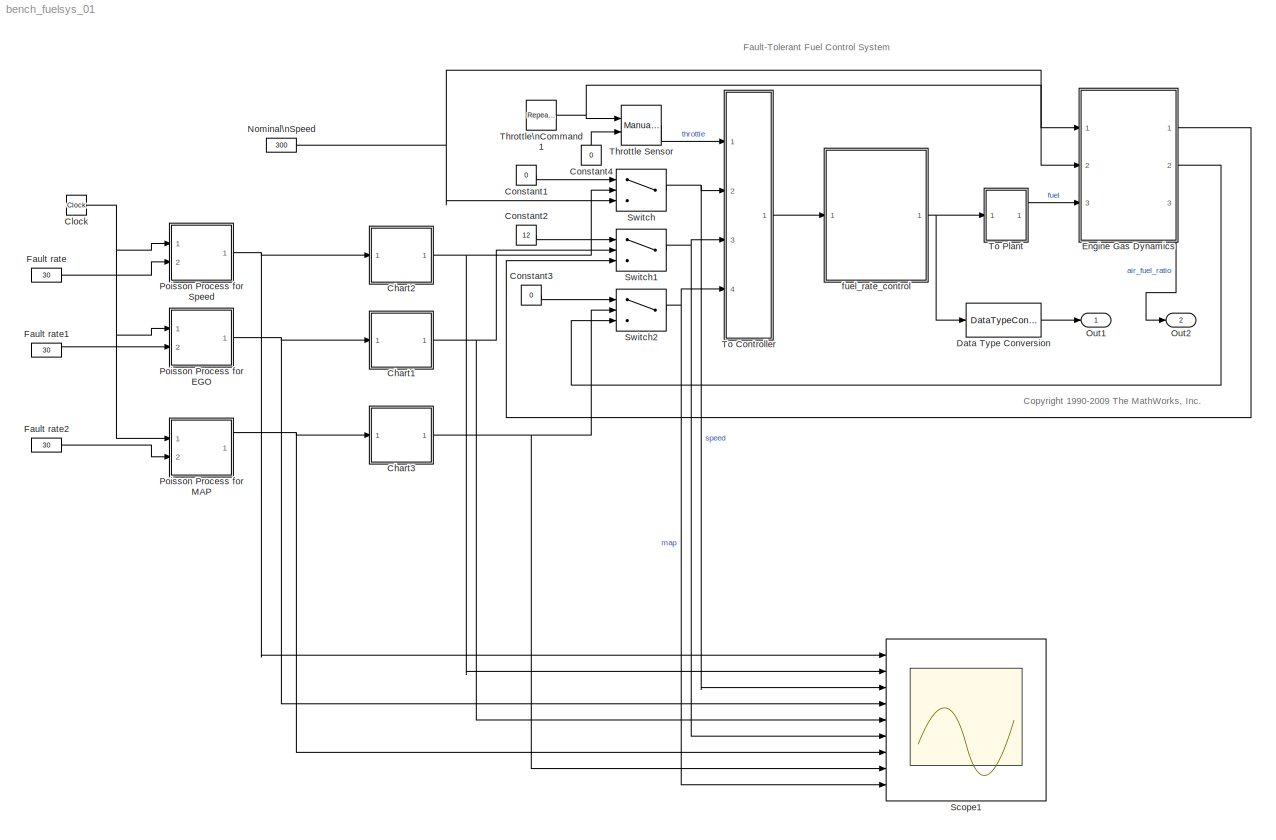
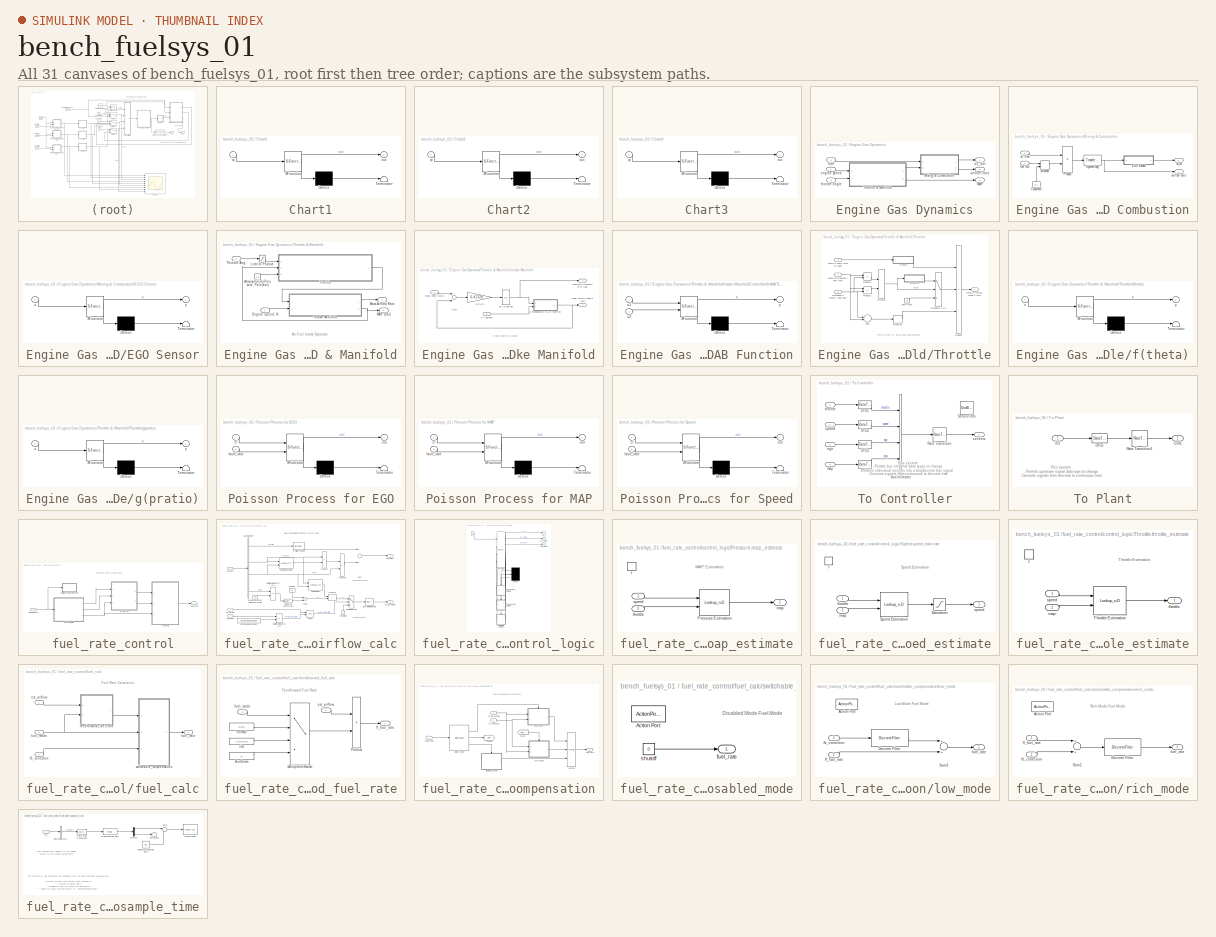
[diagram: thumbnail index - all 31 canvases of the model, root first then tree order]
MODEL bench_fuelsys_01
KIND model
CONFIG PostLoadFcn = sldemo_fuelsys_data(bdroot,'initialize_data','orig','float');
BLOCK [SubSystem] Chart1
  FunctionWithSeparateData = off
  MaskDescription = Stateflow diagram
  MaskDisplay = plot(sf('Private','sfblk','xIcon'),sf('Private','sfblk','yIcon'));text(0.5,0,sf('Private', 'sfblk', 'tIcon'),'HorizontalAl','Center','VerticalAl','Bottom');
  MaskHideContents = off
  MaskIconFrame = off
  MaskIconOpaque = off
  MaskIconRotate = none
  MaskIconUnits = autoscale
  MaskPortRotate = default
  MaskSelfModifiable = on
  MaskType = Stateflow
  MinAlgLoopOccurrences = off
  Opaque = off
  PermitHierarchicalResolution = ExplicitOnly
  Ports = [1, 1]
  PropExecContextOutsideSubsystem = off
  RTWSystemCode = Auto
  RequestExecContextInheritance = off
  SID = 380
  TreatAsAtomicUnit = on
BLOCK [Demux] Chart1/ Demux 
  Outputs = 1
  Ports = [1, 1]
  SID = 380::14
BLOCK [S-Function] Chart1/ SFunction 
  EnableBusSupport = on
  FunctionName = sf_sfun
  PortCounts = [1 2]
  Ports = [1, 2]
  SID = 380::13
  Tag = Stateflow S-Function bench_fuelsys_01 9
BLOCK [Terminator] Chart1/ Terminator 
  SID = 380::16
BLOCK [Inport] Chart1/ip
  IconDisplay = Port number
  SID = 380::17
BLOCK [Outport] Chart1/out
  IconDisplay = Port number
  SID = 380::18
BLOCK [SubSystem] Chart2
  FunctionWithSeparateData = off
  MaskDescription = Stateflow diagram
  MaskDisplay = plot(sf('Private','sfblk','xIcon'),sf('Private','sfblk','yIcon'));text(0.5,0,sf('Private', 'sfblk', 'tIcon'),'HorizontalAl','Center','VerticalAl','Bottom');
  MaskHideContents = off
  MaskIconFrame = off
  MaskIconOpaque = off
  MaskIconRotate = none
  MaskIconUnits = autoscale
  MaskPortRotate = default
  MaskSelfModifiable = on
  MaskType = Stateflow
  MinAlgLoopOccurrences = off
  Opaque = off
  PermitHierarchicalResolution = ExplicitOnly
  Ports = [1, 1]
  PropExecContextOutsideSubsystem = off
  RTWSystemCode = Auto
  RequestExecContextInheritance = off
  SID = 374
  TreatAsAtomicUnit = on
BLOCK [Demux] Chart2/ Demux 
  Outputs = 1
  Ports = [1, 1]
  SID = 374::14
BLOCK [S-Function] Chart2/ SFunction 
  EnableBusSupport = on
  FunctionName = sf_sfun
  PortCounts = [1 2]
  Ports = [1, 2]
  SID = 374::13
  Tag = Stateflow S-Function bench_fuelsys_01 11
BLOCK [Terminator] Chart2/ Terminator 
  SID = 374::16
BLOCK [Inport] Chart2/ip
  IconDisplay = Port number
  SID = 374::17
BLOCK [Outport] Chart2/out
  IconDisplay = Port number
  SID = 374::18
BLOCK [SubSystem] Chart3
  FunctionWithSeparateData = off
  MaskDescription = Stateflow diagram
  MaskDisplay = plot(sf('Private','sfblk','xIcon'),sf('Private','sfblk','yIcon'));text(0.5,0,sf('Private', 'sfblk', 'tIcon'),'HorizontalAl','Center','VerticalAl','Bottom');
  MaskHideContents = off
  MaskIconFrame = off
  MaskIconOpaque = off
  MaskIconRotate = none
  MaskIconUnits = autoscale
  MaskPortRotate = default
  MaskSelfModifiable = on
  MaskType = Stateflow
  MinAlgLoopOccurrences = off
  Opaque = off
  PermitHierarchicalResolution = ExplicitOnly
  Ports = [1, 1]
  PropExecContextOutsideSubsystem = off
  RTWSystemCode = Auto
  RequestExecContextInheritance = off
  SID = 381
  TreatAsAtomicUnit = on
BLOCK [Demux] Chart3/ Demux 
  Outputs = 1
  Ports = [1, 1]
  SID = 381::14
BLOCK [S-Function] Chart3/ SFunction 
  EnableBusSupport = on
  FunctionName = sf_sfun
  PortCounts = [1 2]
  Ports = [1, 2]
  SID = 381::13
  Tag = Stateflow S-Function bench_fuelsys_01 10
BLOCK [Terminator] Chart3/ Terminator 
  SID = 381::16
BLOCK [Inport] Chart3/ip
  IconDisplay = Port number
  SID = 381::17
BLOCK [Outport] Chart3/out
  IconDisplay = Port number
  SID = 381::18
BLOCK [Clock] Clock
  Decimation = 10
  SID = 350
BLOCK [Constant] Constant1
  SID = 307
  Value = 0
BLOCK [Constant] Constant2
  SID = 306
  Value = 12
BLOCK [Constant] Constant3
  SID = 309
  Value = 0
BLOCK [Constant] Constant4
  SID = 3
  Value = 0
BLOCK [DataTypeConversion] Data Type Conversion
  OutDataTypeStr = double
  RndMeth = Floor
  SID = 379
  SaturateOnIntegerOverflow = off
BLOCK [SubSystem] Engine Gas Dynamics
  FunctionWithSeparateData = off
  MaskHideContents = off
  MinAlgLoopOccurrences = off
  Opaque = off
  Ports = [3, 3]
  PropExecContextOutsideSubsystem = off
  RTWSystemCode = Auto
  RequestExecContextInheritance = off
  SID = 7
BLOCK [Outport] Engine Gas Dynamics/MAP
  IconDisplay = Port number
  Port = 2
  SID = 53
BLOCK [SubSystem] Engine Gas Dynamics/Mixing & Combustion
  FunctionWithSeparateData = off
  MaskHideContents = off
  MinAlgLoopOccurrences = off
  Opaque = off
  Ports = [2, 2]
  PropExecContextOutsideSubsystem = off
  RTWSystemCode = Auto
  RequestExecContextInheritance = off
  SID = 11
BLOCK [Constant] Engine Gas Dynamics/Mixing & Combustion/Constant4
  SID = 14
  Value = 0.1
BLOCK [SubSystem] Engine Gas Dynamics/Mixing & Combustion/EGO Sensor
  FunctionWithSeparateData = off
  MaskDescription = Embedded MATLAB block
  MaskDisplay = disp('fcn');
  MaskHideContents = off
  MaskIconFrame = on
  MaskIconOpaque = off
  MaskIconRotate = none
  MaskIconUnits = autoscale
  MaskPortRotate = default
  MaskSelfModifiable = on
  MaskType = Stateflow
  MinAlgLoopOccurrences = off
  Opaque = off
  PermitHierarchicalResolution = ExplicitOnly
  Ports = [1, 1]
  PropExecContextOutsideSubsystem = off
  RTWSystemCode = Auto
  RequestExecContextInheritance = off
  SID = 15
  TreatAsAtomicUnit = on
BLOCK [Demux] Engine Gas Dynamics/Mixing & Combustion/EGO Sensor/ Demux 
  Outputs = 1
  Ports = [1, 1]
  SID = 15::15
BLOCK [S-Function] Engine Gas Dynamics/Mixing & Combustion/EGO Sensor/ SFunction 
  EnableBusSupport = on
  FunctionName = sf_sfun
  PortCounts = [1 2]
  Ports = [1, 2]
  SID = 15::14
  Tag = Stateflow S-Function bench_fuelsys_01 5
BLOCK [Terminator] Engine Gas Dynamics/Mixing & Combustion/EGO Sensor/ Terminator 
  SID = 15::17
BLOCK [Inport] Engine Gas Dynamics/Mixing & Combustion/EGO Sensor/u
  IconDisplay = Port number
  SID = 15::1
BLOCK [Outport] Engine Gas Dynamics/Mixing & Combustion/EGO Sensor/y
  IconDisplay = Port number
  SID = 15::5
BLOCK [MinMax] Engine Gas Dynamics/Mixing & Combustion/MinMax
  Function = max
  Inputs = 2
  Ports = [2, 1]
  SID = 16
BLOCK [Product] Engine Gas Dynamics/Mixing & Combustion/Product
  Inputs = */
  Ports = [2, 1]
  SID = 17
BLOCK [Reference] Engine Gas Dynamics/Mixing & Combustion/System Lag  REF=simulink_extras/Additional\nLinear/Transfer Fcn\n(with initial outputs)
  D = [1 3]
  FunctionWithSeparateData = off
  GeneratePreprocessorConditionals = off
  N = 3
  Ports = [1, 1]
  RTWMemSecDataConstants = Inherit from model
  RTWMemSecDataInternal = Inherit from model
  RTWMemSecDataParameters = Inherit from model
  RTWMemSecFuncExecute = Inherit from model
  RTWMemSecFuncInitTerm = Inherit from model
  SID = 18
  ShowPortLabels = FromPortIcon
  SourceBlock = simulink_extras/Additional\nLinear/Transfer Fcn\n(with initial outputs)
  SourceType = Transfer Function with Initial Outputs
  SystemSampleTime = -1
  U0 = 1/14.6
  Y0 = 1/14.6
BLOCK [Inport] Engine Gas Dynamics/Mixing & Combustion/air flow
  IconDisplay = Port number
  Port = 2
  SID = 13
BLOCK [Outport] Engine Gas Dynamics/Mixing & Combustion/air//fuel ratio
  IconDisplay = Port number
  Port = 2
  SID = 20
BLOCK [Inport] Engine Gas Dynamics/Mixing & Combustion/fuel rate
  IconDisplay = Port number
  SID = 12
BLOCK [Outport] Engine Gas Dynamics/Mixing & Combustion/o2_out
  IconDisplay = Port number
  SID = 19
BLOCK [SubSystem] Engine Gas Dynamics/Throttle & Manifold
  FunctionWithSeparateData = off
  MaskHideContents = off
  MinAlgLoopOccurrences = off
  Opaque = off
  Ports = [2, 2]
  PropExecContextOutsideSubsystem = off
  RTWSystemCode = Auto
  RequestExecContextInheritance = off
  SID = 21
BLOCK [Constant] Engine Gas Dynamics/Throttle & Manifold/Atmospheric\nPressure, Pa\n(bar)
  SID = 24
  Value = 1.0
BLOCK [Inport] Engine Gas Dynamics/Throttle & Manifold/Engine Speed, N
  IconDisplay = Port number
  SID = 22
BLOCK [SubSystem] Engine Gas Dynamics/Throttle & Manifold/Intake Manifold
  FunctionWithSeparateData = off
  MaskHideContents = off
  MinAlgLoopOccurrences = off
  Opaque = off
  Ports = [2, 2]
  PropExecContextOutsideSubsystem = off
  RTWSystemCode = Auto
  RequestExecContextInheritance = off
  SID = 25
BLOCK [SubSystem] Engine Gas Dynamics/Throttle & Manifold/Intake Manifold/Embedded\nMATLAB Function
  FunctionWithSeparateData = off
  MaskDescription = Embedded MATLAB block
  MaskDisplay = disp('pumping');
  MaskHideContents = off
  MaskIconFrame = on
  MaskIconOpaque = off
  MaskIconRotate = none
  MaskIconUnits = autoscale
  MaskPortRotate = default
  MaskSelfModifiable = on
  MaskType = Stateflow
  MinAlgLoopOccurrences = off
  Opaque = off
  PermitHierarchicalResolution = ExplicitOnly
  Ports = [2, 1]
  PropExecContextOutsideSubsystem = off
  RTWSystemCode = Auto
  RequestExecContextInheritance = off
  SID = 28
  TreatAsAtomicUnit = on
BLOCK [Demux] Engine Gas Dynamics/Throttle & Manifold/Intake Manifold/Embedded\nMATLAB Function/ Demux 
  Outputs = 1
  Ports = [1, 1]
  SID = 28::16
BLOCK [S-Function] Engine Gas Dynamics/Throttle & Manifold/Intake Manifold/Embedded\nMATLAB Function/ SFunction 
  EnableBusSupport = on
  FunctionName = sf_sfun
  PortCounts = [2 2]
  Ports = [2, 2]
  SID = 28::15
  Tag = Stateflow S-Function bench_fuelsys_01 4
BLOCK [Terminator] Engine Gas Dynamics/Throttle & Manifold/Intake Manifold/Embedded\nMATLAB Function/ Terminator 
  SID = 28::18
BLOCK [Inport] Engine Gas Dynamics/Throttle & Manifold/Intake Manifold/Embedded\nMATLAB Function/u1
  IconDisplay = Port number
  SID = 28::1
BLOCK [Inport] Engine Gas Dynamics/Throttle & Manifold/Intake Manifold/Embedded\nMATLAB Function/u2
  IconDisplay = Port number
  Port = 2
  SID = 28::2
BLOCK [Outport] Engine Gas Dynamics/Throttle & Manifold/Intake Manifold/Embedded\nMATLAB Function/y
  IconDisplay = Port number
  SID = 28::6
BLOCK [Outport] Engine Gas Dynamics/Throttle & Manifold/Intake Manifold/Manifold Pressure,\nPm (bar)
  IconDisplay = Port number
  Port = 2
  SID = 33
BLOCK [Inport] Engine Gas Dynamics/Throttle & Manifold/Intake Manifold/N (rad//sec)
  IconDisplay = Port number
  Port = 2
  SID = 27
BLOCK [Gain] Engine Gas Dynamics/Throttle & Manifold/Intake Manifold/RT//Vm
  Gain = 0.41328
  SID = 29
BLOCK [Sum] Engine Gas Dynamics/Throttle & Manifold/Intake Manifold/Sum
  Inputs = +-
  Ports = [2, 1]
  SID = 30
BLOCK [Inport] Engine Gas Dynamics/Throttle & Manifold/Intake Manifold/mdot Input \n(g//s)
  IconDisplay = Port number
  SID = 26
BLOCK [Outport] Engine Gas Dynamics/Throttle & Manifold/Intake Manifold/mdot to\nCylinder\n (g//s)
  IconDisplay = Port number
  SID = 32
BLOCK [Integrator] Engine Gas Dynamics/Throttle & Manifold/Intake Manifold/p0 = 0.589 bar
  InitialCondition = .589
  Ports = [1, 1]
  SID = 31
BLOCK [Saturate] Engine Gas Dynamics/Throttle & Manifold/Limit to Positive
  InputPortMap = u0
  LowerLimit = 0
  Ports = [1, 1]
  SID = 34
  UpperLimit = inf
BLOCK [Outport] Engine Gas Dynamics/Throttle & Manifold/MAP (bar)
  IconDisplay = Port number
  Port = 2
  SID = 51
BLOCK [Outport] Engine Gas Dynamics/Throttle & Manifold/Mass Airflow Rate
  IconDisplay = Port number
  SID = 50
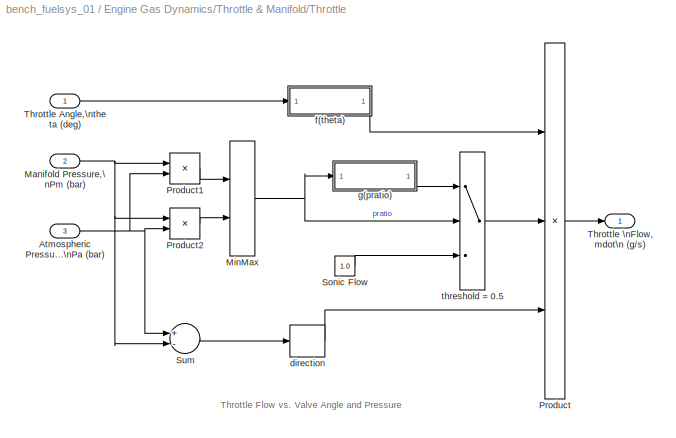
BLOCK [SubSystem] Engine Gas Dynamics/Throttle & Manifold/Throttle
  FunctionWithSeparateData = off
  MaskHideContents = off
  MinAlgLoopOccurrences = off
  Opaque = off
  Ports = [3, 1]
  PropExecContextOutsideSubsystem = off
  RTWSystemCode = Auto
  RequestExecContextInheritance = off
  SID = 35
BLOCK [Inport] Engine Gas Dynamics/Throttle & Manifold/Throttle Ang.
  IconDisplay = Port number
  Port = 2
  SID = 23
BLOCK [Inport] Engine Gas Dynamics/Throttle & Manifold/Throttle/Atmospheric Pressure,\nPa (bar) 
  IconDisplay = Port number
  Port = 3
  SID = 38
BLOCK [Inport] Engine Gas Dynamics/Throttle & Manifold/Throttle/Manifold Pressure,\nPm (bar)
  IconDisplay = Port number
  Port = 2
  SID = 37
BLOCK [MinMax] Engine Gas Dynamics/Throttle & Manifold/Throttle/MinMax
  Function = min
  Inputs = 2
  Ports = [2, 1]
  SID = 39
BLOCK [Product] Engine Gas Dynamics/Throttle & Manifold/Throttle/Product
  Inputs = 3
  Ports = [3, 1]
  SID = 40
BLOCK [Product] Engine Gas Dynamics/Throttle & Manifold/Throttle/Product1
  Inputs = */
  Ports = [2, 1]
  SID = 41
BLOCK [Product] Engine Gas Dynamics/Throttle & Manifold/Throttle/Product2
  Inputs = /*
  Ports = [2, 1]
  SID = 42
BLOCK [Constant] Engine Gas Dynamics/Throttle & Manifold/Throttle/Sonic Flow 
  SID = 43
  Value = 1.0
BLOCK [Sum] Engine Gas Dynamics/Throttle & Manifold/Throttle/Sum
  Inputs = +-
  Ports = [2, 1]
  SID = 44
BLOCK [Inport] Engine Gas Dynamics/Throttle & Manifold/Throttle/Throttle Angle,\ntheta (deg)
  IconDisplay = Port number
  SID = 36
BLOCK [Outport] Engine Gas Dynamics/Throttle & Manifold/Throttle/Throttle \nFlow, mdot\n (g//s)
  IconDisplay = Port number
  SID = 49
BLOCK [Signum] Engine Gas Dynamics/Throttle & Manifold/Throttle/direction
  SID = 45
BLOCK [SubSystem] Engine Gas Dynamics/Throttle & Manifold/Throttle/f(theta)
  FunctionWithSeparateData = off
  MaskDescription = Embedded MATLAB block
  MaskDisplay = disp('f');
  MaskHideContents = off
  MaskIconFrame = on
  MaskIconOpaque = off
  MaskIconRotate = none
  MaskIconUnits = autoscale
  MaskPortRotate = default
  MaskSelfModifiable = on
  MaskType = Stateflow
  MinAlgLoopOccurrences = off
  Opaque = off
  PermitHierarchicalResolution = ExplicitOnly
  Ports = [1, 1]
  PropExecContextOutsideSubsystem = off
  RTWSystemCode = Auto
  RequestExecContextInheritance = off
  SID = 46
  TreatAsAtomicUnit = on
BLOCK [Demux] Engine Gas Dynamics/Throttle & Manifold/Throttle/f(theta)/ Demux 
  Outputs = 1
  Ports = [1, 1]
  SID = 46::15
BLOCK [S-Function] Engine Gas Dynamics/Throttle & Manifold/Throttle/f(theta)/ SFunction 
  EnableBusSupport = on
  FunctionName = sf_sfun
  PortCounts = [1 2]
  Ports = [1, 2]
  SID = 46::14
  Tag = Stateflow S-Function bench_fuelsys_01 2
BLOCK [Terminator] Engine Gas Dynamics/Throttle & Manifold/Throttle/f(theta)/ Terminator 
  SID = 46::17
BLOCK [Inport] Engine Gas Dynamics/Throttle & Manifold/Throttle/f(theta)/u
  IconDisplay = Port number
  SID = 46::1
BLOCK [Outport] Engine Gas Dynamics/Throttle & Manifold/Throttle/f(theta)/y
  IconDisplay = Port number
  SID = 46::5
BLOCK [SubSystem] Engine Gas Dynamics/Throttle & Manifold/Throttle/g(pratio)
  FunctionWithSeparateData = off
  MaskDescription = Embedded MATLAB block
  MaskDisplay = disp('g');
  MaskHideContents = off
  MaskIconFrame = on
  MaskIconOpaque = off
  MaskIconRotate = none
  MaskIconUnits = autoscale
  MaskPortRotate = default
  MaskSelfModifiable = on
  MaskType = Stateflow
  MinAlgLoopOccurrences = off
  Opaque = off
  PermitHierarchicalResolution = ExplicitOnly
  Ports = [1, 1]
  PropExecContextOutsideSubsystem = off
  RTWSystemCode = Auto
  RequestExecContextInheritance = off
  SID = 47
  TreatAsAtomicUnit = on
BLOCK [Demux] Engine Gas Dynamics/Throttle & Manifold/Throttle/g(pratio)/ Demux 
  Outputs = 1
  Ports = [1, 1]
  SID = 47::15
BLOCK [S-Function] Engine Gas Dynamics/Throttle & Manifold/Throttle/g(pratio)/ SFunction 
  EnableBusSupport = on
  FunctionName = sf_sfun
  PortCounts = [1 2]
  Ports = [1, 2]
  SID = 47::14
  Tag = Stateflow S-Function bench_fuelsys_01 3
BLOCK [Terminator] Engine Gas Dynamics/Throttle & Manifold/Throttle/g(pratio)/ Terminator 
  SID = 47::17
BLOCK [Inport] Engine Gas Dynamics/Throttle & Manifold/Throttle/g(pratio)/u
  IconDisplay = Port number
  SID = 47::1
BLOCK [Outport] Engine Gas Dynamics/Throttle & Manifold/Throttle/g(pratio)/y
  IconDisplay = Port number
  SID = 47::5
BLOCK [Switch] Engine Gas Dynamics/Throttle & Manifold/Throttle/threshold = 0.5
  SID = 48
  Threshold = 0.5
BLOCK [Outport] Engine Gas Dynamics/air//fuel ratio
  IconDisplay = Port number
  Port = 3
  SID = 54
BLOCK [Inport] Engine Gas Dynamics/engine speed
  IconDisplay = Port number
  OutDataTypeStr = double
  SID = 8
BLOCK [Inport] Engine Gas Dynamics/fuel
  IconDisplay = Port number
  OutDataTypeStr = double
  Port = 3
  SID = 10
BLOCK [Outport] Engine Gas Dynamics/o2_out
  IconDisplay = Port number
  SID = 52
BLOCK [Inport] Engine Gas Dynamics/throttle angle
  IconDisplay = Port number
  OutDataTypeStr = double
  Port = 2
  SID = 9
BLOCK [Constant] Fault rate
  SID = 363
  Value = 30
BLOCK [Constant] Fault rate1
  SID = 364
  Value = 30
BLOCK [Constant] Fault rate2
  SID = 365
  Value = 30
BLOCK [Constant] Nominal\nSpeed
  SID = 361
  Value = 300
BLOCK [Outport] Out1
  IconDisplay = Port number
  SID = 359
BLOCK [Outport] Out2
  IconDisplay = Port number
  Port = 2
  SID = 378
BLOCK [SubSystem] Poisson Process for EGO
  FunctionWithSeparateData = off
  MaskDescription = Stateflow diagram
  MaskDisplay = plot(sf('Private','sfblk','xIcon'),sf('Private','sfblk','yIcon'));text(0.5,0,sf('Private', 'sfblk', 'tIcon'),'HorizontalAl','Center','VerticalAl','Bottom');
  MaskHideContents = off
  MaskIconFrame = off
  MaskIconOpaque = off
  MaskIconRotate = none
  MaskIconUnits = autoscale
  MaskPortRotate = default
  MaskSelfModifiable = on
  MaskType = Stateflow
  MinAlgLoopOccurrences = off
  Opaque = off
  PermitHierarchicalResolution = ExplicitOnly
  Ports = [2, 1]
  PropExecContextOutsideSubsystem = off
  RTWSystemCode = Auto
  RequestExecContextInheritance = off
  SID = 352
  TreatAsAtomicUnit = on
BLOCK [Demux] Poisson Process for EGO/ Demux 
  Outputs = 1
  Ports = [1, 1]
  SID = 352::14
BLOCK [S-Function] Poisson Process for EGO/ SFunction 
  EnableBusSupport = on
  FunctionName = sf_sfun
  PortCounts = [2 2]
  Ports = [2, 2]
  SID = 352::13
  Tag = Stateflow S-Function bench_fuelsys_01 7
BLOCK [Terminator] Poisson Process for EGO/ Terminator 
  SID = 352::28
BLOCK [Inport] Poisson Process for EGO/cl
  IconDisplay = Port number
  SID = 352::18
BLOCK [Inport] Poisson Process for EGO/fault_rate
  IconDisplay = Port number
  Port = 2
  SID = 352::29
BLOCK [Outport] Poisson Process for EGO/out
  IconDisplay = Port number
  SID = 352::19
BLOCK [SubSystem] Poisson Process for MAP
  FunctionWithSeparateData = off
  MaskDescription = Stateflow diagram
  MaskDisplay = plot(sf('Private','sfblk','xIcon'),sf('Private','sfblk','yIcon'));text(0.5,0,sf('Private', 'sfblk', 'tIcon'),'HorizontalAl','Center','VerticalAl','Bottom');
  MaskHideContents = off
  MaskIconFrame = off
  MaskIconOpaque = off
  MaskIconRotate = none
  MaskIconUnits = autoscale
  MaskPortRotate = default
  MaskSelfModifiable = on
  MaskType = Stateflow
  MinAlgLoopOccurrences = off
  Opaque = off
  PermitHierarchicalResolution = ExplicitOnly
  Ports = [2, 1]
  PropExecContextOutsideSubsystem = off
  RTWSystemCode = Auto
  RequestExecContextInheritance = off
  SID = 353
  TreatAsAtomicUnit = on
BLOCK [Demux] Poisson Process for MAP/ Demux 
  Outputs = 1
  Ports = [1, 1]
  SID = 353::14
BLOCK [S-Function] Poisson Process for MAP/ SFunction 
  EnableBusSupport = on
  FunctionName = sf_sfun
  PortCounts = [2 2]
  Ports = [2, 2]
  SID = 353::13
  Tag = Stateflow S-Function bench_fuelsys_01 8
BLOCK [Terminator] Poisson Process for MAP/ Terminator 
  SID = 353::28
BLOCK [Inport] Poisson Process for MAP/cl
  IconDisplay = Port number
  SID = 353::18
BLOCK [Inport] Poisson Process for MAP/fault_rate
  IconDisplay = Port number
  Port = 2
  SID = 353::29
BLOCK [Outport] Poisson Process for MAP/out
  IconDisplay = Port number
  SID = 353::19
BLOCK [SubSystem] Poisson Process for Speed
  FunctionWithSeparateData = off
  MaskDescription = Stateflow diagram
  MaskDisplay = plot(sf('Private','sfblk','xIcon'),sf('Private','sfblk','yIcon'));text(0.5,0,sf('Private', 'sfblk', 'tIcon'),'HorizontalAl','Center','VerticalAl','Bottom');
  MaskHideContents = off
  MaskIconFrame = off
  MaskIconOpaque = off
  MaskIconRotate = none
  MaskIconUnits = autoscale
  MaskPortRotate = default
  MaskSelfModifiable = on
  MaskType = Stateflow
  MinAlgLoopOccurrences = off
  Opaque = off
  PermitHierarchicalResolution = ExplicitOnly
  Ports = [2, 1]
  PropExecContextOutsideSubsystem = off
  RTWSystemCode = Auto
  RequestExecContextInheritance = off
  SID = 351
  TreatAsAtomicUnit = on
BLOCK [Demux] Poisson Process for Speed/ Demux 
  Outputs = 1
  Ports = [1, 1]
  SID = 351::14
BLOCK [S-Function] Poisson Process for Speed/ SFunction 
  EnableBusSupport = on
  FunctionName = sf_sfun
  PortCounts = [2 2]
  Ports = [2, 2]
  SID = 351::13
  Tag = Stateflow S-Function bench_fuelsys_01 6
BLOCK [Terminator] Poisson Process for Speed/ Terminator 
  SID = 351::28
BLOCK [Inport] Poisson Process for Speed/cl
  IconDisplay = Port number
  SID = 351::18
BLOCK [Inport] Poisson Process for Speed/fault_rate
  IconDisplay = Port number
  Port = 2
  SID = 351::29
BLOCK [Outport] Poisson Process for Speed/out
  IconDisplay = Port number
  SID = 351::19
BLOCK [Scope] Scope1
  DataFormat = StructureWithTime
  Floating = off
  NumInputPorts = 9
  Ports = [9]
  SID = 377
  SampleTime = 0
  TimeRange = 102
  YMax = 1~2~1~1~1~15~1~1~1
  YMin = 0~0~-1~0~0~0~0~0~0
  ZoomMode = xonly
BLOCK [Switch] Switch
  Criteria = u2 > Threshold
  InputSameDT = off
  SID = 303
  SaturateOnIntegerOverflow = off
BLOCK [Switch] Switch1
  Criteria = u2 > Threshold
  InputSameDT = off
  SID = 305
  SaturateOnIntegerOverflow = off
BLOCK [Switch] Switch2
  Criteria = u2 > Threshold
  InputSameDT = off
  SID = 308
  SaturateOnIntegerOverflow = off
BLOCK [Reference] Throttle Sensor  REF=simulink/Signal\nRouting/Manual Switch
  FunctionWithSeparateData = off
  GeneratePreprocessorConditionals = off
  Ports = [2, 1]
  RTWMemSecDataConstants = Inherit from model
  RTWMemSecDataInternal = Inherit from model
  RTWMemSecDataParameters = Inherit from model
  RTWMemSecFuncExecute = Inherit from model
  RTWMemSecFuncInitTerm = Inherit from model
  SID = 61
  ShowPortLabels = FromPortIcon
  SourceBlock = simulink/Signal\nRouting/Manual Switch
  SourceType = Manual Switch
  SystemSampleTime = -1
  action = 0
  sw = 1
  varsize = off
BLOCK [Reference] Throttle\nCommand1  REF=simulink/Sources/Repeating\nSequence
  FunctionWithSeparateData = off
  GeneratePreprocessorConditionals = off
  Ports = [0, 1]
  RTWMemSecDataConstants = Inherit from model
  RTWMemSecDataInternal = Inherit from model
  RTWMemSecDataParameters = Inherit from model
  RTWMemSecFuncExecute = Inherit from model
  RTWMemSecFuncInitTerm = Inherit from model
  SID = 362
  ShowPortLabels = FromPortIcon
  SourceBlock = simulink/Sources/Repeating\nSequence
  SourceType = Repeating table
  SystemSampleTime = -1
  rep_seq_t = [0 2 4]
  rep_seq_y = [10 20 10]
BLOCK [SubSystem] To Controller
  FunctionWithSeparateData = off
  MaskDisplay = fprintf('Convert')
  MaskHideContents = off
  MaskIconFrame = on
  MaskIconOpaque = on
  MaskIconRotate = none
  MaskIconUnits = autoscale
  MaskPortRotate = default
  MinAlgLoopOccurrences = off
  Opaque = off
  Ports = [4, 1]
  PropExecContextOutsideSubsystem = off
  RTWSystemCode = Auto
  RequestExecContextInheritance = off
  SID = 62
BLOCK [BusCreator] To Controller/Bus\nCreator
  DisplayOption = bar
  NonVirtualBus = on
  OutDataTypeStr = Bus: EngSensors
  Ports = [4, 1]
  SID = 67
BLOCK [DataTypeConversion] To Controller/DTC1
  RndMeth = Floor
  SID = 68
  SampleTime = [0 1]
  SaturateOnIntegerOverflow = off
BLOCK [DataTypeConversion] To Controller/DTC2
  RndMeth = Floor
  SID = 69
  SampleTime = [0 1]
  SaturateOnIntegerOverflow = off
BLOCK [DataTypeConversion] To Controller/DTC3
  RndMeth = Floor
  SID = 70
  SampleTime = [0 1]
  SaturateOnIntegerOverflow = off
BLOCK [DataTypeConversion] To Controller/DTC4
  RndMeth = Floor
  SID = 71
  SampleTime = [0 1]
  SaturateOnIntegerOverflow = off
BLOCK [RateTransition] To Controller/Rate Transition
  OutPortSampleTime = 0.01
  SID = 72
BLOCK [Reference] To Controller/Sensor Info  REF=simulink/Model-Wide\nUtilities/DocBlock
  DocumentType = Text
  FunctionWithSeparateData = off
  GeneratePreprocessorConditionals = off
  Ports = []
  RTWMemSecDataConstants = Inherit from model
  RTWMemSecDataInternal = Inherit from model
  RTWMemSecDataParameters = Inherit from model
  RTWMemSecFuncExecute = Inherit from model
  RTWMemSecFuncInitTerm = Inherit from model
  SID = 73
  ShowPortLabels = FromPortIcon
  SourceBlock = simulink/Model-Wide\nUtilities/DocBlock
  SourceType = DocBlock
  SystemSampleTime = -1
  UserData = DataTag1
  UserDataPersistent = on
BLOCK [Inport] To Controller/ego
  IconDisplay = Port number
  Port = 3
  SID = 65
BLOCK [Inport] To Controller/map
  IconDisplay = Port number
  Port = 4
  SID = 66
BLOCK [Outport] To Controller/sensors
  IconDisplay = Port number
  SID = 74
BLOCK [Inport] To Controller/speed
  IconDisplay = Port number
  Port = 2
  SID = 64
BLOCK [Inport] To Controller/throttle
  IconDisplay = Port number
  SID = 63
BLOCK [SubSystem] To Plant
  FunctionWithSeparateData = off
  MaskDisplay = fprintf('Convert')
  MaskHideContents = off
  MaskIconFrame = on
  MaskIconOpaque = on
  MaskIconRotate = none
  MaskIconUnits = autoscale
  MaskPortRotate = default
  MinAlgLoopOccurrences = off
  Opaque = off
  Ports = [1, 1]
  PropExecContextOutsideSubsystem = off
  RTWSystemCode = Auto
  RequestExecContextInheritance = off
  SID = 75
BLOCK [DataTypeConversion] To Plant/DTC5
  RndMeth = Floor
  SID = 77
  SaturateOnIntegerOverflow = off
BLOCK [Inport] To Plant/In1
  IconDisplay = Port number
  SID = 76
BLOCK [Outport] To Plant/Out1
  IconDisplay = Port number
  SID = 79
BLOCK [RateTransition] To Plant/Rate Transition1
  Integrity = off
  OutPortSampleTime = 0
  SID = 78
  X0 = 1.6
BLOCK [SubSystem] fuel_rate_control
  FunctionWithSeparateData = off
  MaskHideContents = off
  MinAlgLoopOccurrences = off
  Opaque = off
  Ports = [1, 1]
  PropExecContextOutsideSubsystem = off
  RTWSystemCode = Auto
  RequestExecContextInheritance = off
  SID = 80
  Tag = FuelRateControl
  TreatAsAtomicUnit = on
BLOCK [Inport] fuel_rate_control/EngSensors
  IconDisplay = Port number
  OutMax = max_speed
  OutMin = 0
  SID = 81
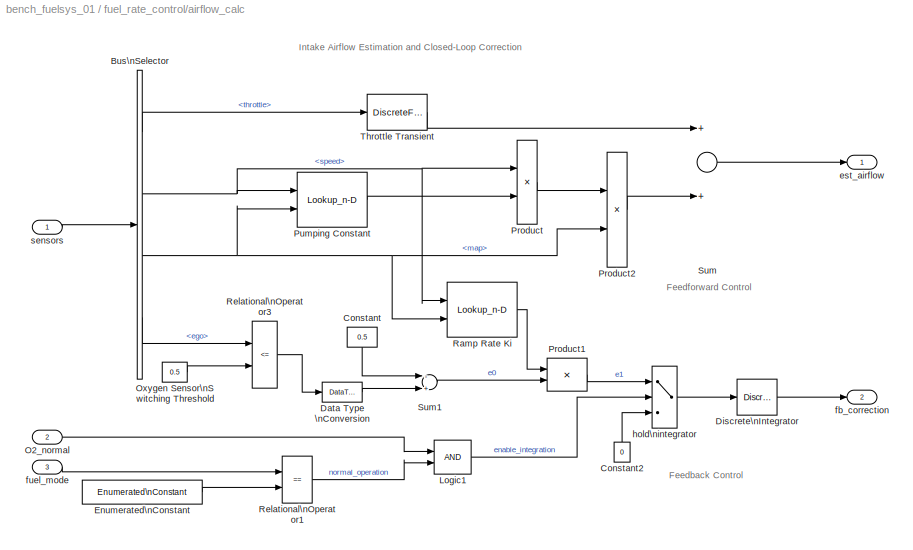
BLOCK [SubSystem] fuel_rate_control/airflow_calc
  FunctionWithSeparateData = off
  MaskHideContents = off
  MinAlgLoopOccurrences = off
  Opaque = off
  Ports = [3, 2]
  PropExecContextOutsideSubsystem = off
  RTWSystemCode = Auto
  RequestExecContextInheritance = off
  SID = 82
BLOCK [BusSelector] fuel_rate_control/airflow_calc/Bus\nSelector
  OutputSignals = throttle,speed,map,ego
  Ports = [1, 4]
  SID = 86
BLOCK [Constant] fuel_rate_control/airflow_calc/Constant
  OutDataTypeStr = s16En7
  SID = 87
  Value = 0.5
BLOCK [Constant] fuel_rate_control/airflow_calc/Constant2
  OutDataTypeStr = uint8
  SID = 89
  Value = 0
BLOCK [DataTypeConversion] fuel_rate_control/airflow_calc/Data Type \nConversion
  OutDataTypeStr = s16En7
  RndMeth = Simplest
  SID = 90
  SaturateOnIntegerOverflow = off
BLOCK [DiscreteIntegrator] fuel_rate_control/airflow_calc/Discrete\nIntegrator
  ExternalReset = none
  ICPrevOutput = DiscIntNeverNeededParam
  ICPrevScaledInput = DiscIntNeverNeededParam
  InitialConditionMode = State only (most efficient)
  InitialConditionSource = internal
  IntegratorMethod = Integration: Forward Euler
  OutDataTypeStr = s16En15
  Ports = [1, 1]
  RndMeth = Simplest
  SID = 91
  SampleTime = -1
BLOCK [Reference] fuel_rate_control/airflow_calc/Enumerated\nConstant  REF=simulink/Sources/Enumerated\nConstant
  DialogController = Simulink.DDGSource
  FunctionWithSeparateData = off
  GeneratePreprocessorConditionals = off
  OutDataTypeStr = Enum: sld_FuelModes
  Ports = [0, 1]
  RTWMemSecDataConstants = Inherit from model
  RTWMemSecDataInternal = Inherit from model
  RTWMemSecDataParameters = Inherit from model
  RTWMemSecFuncExecute = Inherit from model
  RTWMemSecFuncInitTerm = Inherit from model
  SID = 191
  SampleTime = .01
  ShowPortLabels = FromPortIcon
  SourceBlock = simulink/Sources/Enumerated\nConstant
  SourceType = Enumerated Constant
  SystemSampleTime = -1
  Value = sld_FuelModes.LOW
BLOCK [Logic] fuel_rate_control/airflow_calc/Logic1
  AllPortsSameDT = off
  IconShape = distinctive
  OutDataTypeStr = boolean
  Ports = [2, 1]
  SID = 92
BLOCK [Inport] fuel_rate_control/airflow_calc/O2_normal
  IconDisplay = Port number
  Port = 2
  SID = 84
BLOCK [Constant] fuel_rate_control/airflow_calc/Oxygen Sensor\nSwitching Threshold
  OutDataTypeStr = s16En7
  SID = 93
  Value = 0.5
BLOCK [Product] fuel_rate_control/airflow_calc/Product
  InputSameDT = off
  OutDataTypeStr = s16En7
  Ports = [2, 1]
  RndMeth = Simplest
  SID = 94
  SaturateOnIntegerOverflow = off
BLOCK [Product] fuel_rate_control/airflow_calc/Product1
  InputSameDT = off
  OutDataTypeStr = s16En15
  Ports = [2, 1]
  RndMeth = Simplest
  SID = 95
  SaturateOnIntegerOverflow = off
BLOCK [Product] fuel_rate_control/airflow_calc/Product2
  InputSameDT = off
  OutDataTypeStr = s16En7
  Ports = [2, 1]
  RndMeth = Simplest
  SID = 96
  SaturateOnIntegerOverflow = off
BLOCK [Lookup_n-D] fuel_rate_control/airflow_calc/Pumping Constant
  BreakpointsForDimension1 = SpeedVect
  BreakpointsForDimension2 = PressVect
  ExtrapMethod = None - Clip
  IndexSearchMethod = Linear search
  InputSameDT = off
  OutDataTypeStr = s16En15
  Ports = [2, 1]
  RndMeth = Simplest
  SID = 97
  Table = PumpCon
  UseLastTableValue = on
BLOCK [Lookup_n-D] fuel_rate_control/airflow_calc/Ramp Rate Ki
  BreakpointsForDimension1 = RampRateKiX
  BreakpointsForDimension2 = RampRateKiY
  ExtrapMethod = None - Clip
  IndexSearchMethod = Linear search
  InputSameDT = off
  OutDataTypeStr = s16En15
  Ports = [2, 1]
  RndMeth = Simplest
  SID = 98
  Table = RampRateKiZ
  UseLastTableValue = on
BLOCK [RelationalOperator] fuel_rate_control/airflow_calc/Relational\nOperator1
  Operator = ==
  OutDataTypeStr = boolean
  Ports = [2, 1]
  SID = 99
BLOCK [RelationalOperator] fuel_rate_control/airflow_calc/Relational\nOperator3
  InputSameDT = off
  Operator = <=
  OutDataTypeStr = boolean
  Ports = [2, 1]
  SID = 100
BLOCK [Sum] fuel_rate_control/airflow_calc/Sum
  InputSameDT = off
  Inputs = 2
  OutDataTypeStr = s16En7
  Ports = [2, 1]
  RndMeth = Simplest
  SID = 101
  SaturateOnIntegerOverflow = off
BLOCK [Sum] fuel_rate_control/airflow_calc/Sum1
  InputSameDT = off
  Inputs = -+
  OutDataTypeStr = s16En15
  Ports = [2, 1]
  RndMeth = Simplest
  SID = 102
  SaturateOnIntegerOverflow = off
BLOCK [DiscreteFilter] fuel_rate_control/airflow_calc/Throttle Transient
  Denominator = [1 -.8]
  Numerator = [.01 -.01]
  OutDataTypeStr = s16En7
  Ports = [1, 1]
  RndMeth = Simplest
  SID = 103
  a0EqualsOne = on
BLOCK [Outport] fuel_rate_control/airflow_calc/est_airflow
  IconDisplay = Port number
  SID = 105
BLOCK [Outport] fuel_rate_control/airflow_calc/fb_correction
  IconDisplay = Port number
  Port = 2
  SID = 106
BLOCK [Inport] fuel_rate_control/airflow_calc/fuel_mode
  IconDisplay = Port number
  Port = 3
  SID = 85
BLOCK [Switch] fuel_rate_control/airflow_calc/hold\nintegrator
  Criteria = u2 ~= 0
  InputSameDT = off
  OutDataTypeStr = s16En15
  RndMeth = Simplest
  SID = 104
  SaturateOnIntegerOverflow = off
  Threshold = 1
BLOCK [Inport] fuel_rate_control/airflow_calc/sensors
  IconDisplay = Port number
  SID = 83
BLOCK [SubSystem] fuel_rate_control/control_logic
  Description = Stateflow diagram to determine control system operating mode
  FunctionWithSeparateData = off
  MaskDescription = Stateflow diagram
  MaskDisplay = plot(sf('Private','sfblk','xIcon'),sf('Private','sfblk','yIcon'));text(0.5,0,sf('Private', 'sfblk', 'tIcon'),'HorizontalAl','Center','VerticalAl','Bottom');
  MaskHideContents = off
  MaskIconFrame = off
  MaskIconOpaque = off
  MaskIconRotate = none
  MaskIconUnits = autoscale
  MaskPortRotate = default
  MaskSelfModifiable = on
  MaskType = Stateflow
  MinAlgLoopOccurrences = off
  Opaque = off
  PermitHierarchicalResolution = ExplicitOnly
  Ports = [1, 3]
  PropExecContextOutsideSubsystem = off
  RTWSystemCode = Auto
  RequestExecContextInheritance = off
  SID = 107
  TreatAsAtomicUnit = on
BLOCK [Demux] fuel_rate_control/control_logic/ Demux 
  Outputs = 3
  Ports = [1, 3]
  SID = 107::37
BLOCK [S-Function] fuel_rate_control/control_logic/ SFunction 
  EnableBusSupport = on
  FunctionName = sf_sfun
  Parameters = hys,max_ego,max_press,max_speed,max_throt,min_press,min_throt,zero_thresh
  PortCounts = [4 10]
  Ports = [4, 10]
  SID = 107::36
  Tag = Stateflow S-Function bench_fuelsys_01 1
BLOCK [Outport] fuel_rate_control/control_logic/O2_normal
  IconDisplay = Port number
  Port = 2
  SID = 107::31
BLOCK [SubSystem] fuel_rate_control/control_logic/Pressure.map_estimate
  FunctionWithSeparateData = off
  MaskHideContents = off
  MinAlgLoopOccurrences = off
  Opaque = off
  Ports = [2, 1, 0, 1]
  PreDeleteFcn = Stateflow.SLINSF.SimulinkMan.removePreDeleteFcn
  PropExecContextOutsideSubsystem = off
  RTWSystemCode = Auto
  RequestExecContextInheritance = off
  SID = 107::4
  UndoDeleteFcn = Stateflow.SLINSF.SimulinkMan.restorePreDeleteFcn
BLOCK [Lookup_n-D] fuel_rate_control/control_logic/Pressure.map_estimate/Pressure Estimation
  BreakpointsForDimension1 = SpeedVect
  BreakpointsForDimension2 = ThrotVect
  ExtrapMethod = None - Clip
  IndexSearchMethod = Linear search
  InputSameDT = off
  OutDataTypeStr = u8En7
  Ports = [2, 1]
  RndMeth = Simplest
  SID = 107::8
  Table = PressEst
  UseLastTableValue = on
BLOCK [TriggerPort] fuel_rate_control/control_logic/Pressure.map_estimate/f
  CopyFcn = set_param(gcbh,'PreDeleteFcn','')
  Ports = []
  PreDeleteFcn = Stateflow.SLINSF.SimulinkMan.unsafePredeleteFcn
  SID = 107::7
  StatesWhenEnabling = held
  TriggerType = function-call
BLOCK [Outport] fuel_rate_control/control_logic/Pressure.map_estimate/map
  IconDisplay = Port number
  SID = 107::9
BLOCK [Inport] fuel_rate_control/control_logic/Pressure.map_estimate/speed
  IconDisplay = Port number
  OutDataTypeStr = s16En3
  SID = 107::5
BLOCK [Inport] fuel_rate_control/control_logic/Pressure.map_estimate/throttle
  IconDisplay = Port number
  OutDataTypeStr = s16En3
  Port = 2
  SID = 107::6
BLOCK [SubSystem] fuel_rate_control/control_logic/Speed.speed_estimate
  FunctionWithSeparateData = off
  MaskHideContents = off
  MinAlgLoopOccurrences = off
  Opaque = off
  Ports = [2, 1, 0, 1]
  PreDeleteFcn = Stateflow.SLINSF.SimulinkMan.removePreDeleteFcn
  PropExecContextOutsideSubsystem = off
  RTWSystemCode = Auto
  RequestExecContextInheritance = off
  SID = 107::10
  UndoDeleteFcn = Stateflow.SLINSF.SimulinkMan.restorePreDeleteFcn
BLOCK [Saturate] fuel_rate_control/control_logic/Speed.speed_estimate/Saturation
  InputPortMap = u0
  LowerLimit = 0
  OutDataTypeStr = s16En3
  Ports = [1, 1]
  SID = 107::14
  UpperLimit = max_speed
BLOCK [Lookup_n-D] fuel_rate_control/control_logic/Speed.speed_estimate/Speed Estimation
  BreakpointsForDimension1 = ThrotVect
  BreakpointsForDimension2 = PressVect
  ExtrapMethod = None - Clip
  IndexSearchMethod = Linear search
  InputSameDT = off
  OutDataTypeStr = s16En3
  Ports = [2, 1]
  RndMeth = Simplest
  SID = 107::15
  Table = SpeedEst
  UseLastTableValue = on
BLOCK [TriggerPort] fuel_rate_control/control_logic/Speed.speed_estimate/f
  CopyFcn = set_param(gcbh,'PreDeleteFcn','')
  Ports = []
  PreDeleteFcn = Stateflow.SLINSF.SimulinkMan.unsafePredeleteFcn
  SID = 107::13
  StatesWhenEnabling = held
  TriggerType = function-call
BLOCK [Inport] fuel_rate_control/control_logic/Speed.speed_estimate/map
  IconDisplay = Port number
  OutDataTypeStr = u8En7
  Port = 2
  SID = 107::12
BLOCK [Outport] fuel_rate_control/control_logic/Speed.speed_estimate/speed
  IconDisplay = Port number
  SID = 107::16
BLOCK [Inport] fuel_rate_control/control_logic/Speed.speed_estimate/throttle
  IconDisplay = Port number
  OutDataTypeStr = s16En3
  SID = 107::11
BLOCK [SubSystem] fuel_rate_control/control_logic/Throttle.throttle_estimate
  FunctionWithSeparateData = off
  MaskHideContents = off
  MinAlgLoopOccurrences = off
  Opaque = off
  Ports = [2, 1, 0, 1]
  PreDeleteFcn = Stateflow.SLINSF.SimulinkMan.removePreDeleteFcn
  PropExecContextOutsideSubsystem = off
  RTWSystemCode = Auto
  RequestExecContextInheritance = off
  SID = 107::17
  UndoDeleteFcn = Stateflow.SLINSF.SimulinkMan.restorePreDeleteFcn
BLOCK [Lookup_n-D] fuel_rate_control/control_logic/Throttle.throttle_estimate/Throttle Estimation
  BreakpointsForDimension1 = SpeedVect
  BreakpointsForDimension2 = PressVect
  ExtrapMethod = None - Clip
  IndexSearchMethod = Linear search
  InputSameDT = off
  OutDataTypeStr = s16En7
  Ports = [2, 1]
  RndMeth = Simplest
  SID = 107::21
  Table = ThrotEst
  UseLastTableValue = on
BLOCK [TriggerPort] fuel_rate_control/control_logic/Throttle.throttle_estimate/f
  CopyFcn = set_param(gcbh,'PreDeleteFcn','')
  Ports = []
  PreDeleteFcn = Stateflow.SLINSF.SimulinkMan.unsafePredeleteFcn
  SID = 107::20
  StatesWhenEnabling = held
  TriggerType = function-call
BLOCK [Inport] fuel_rate_control/control_logic/Throttle.throttle_estimate/map
  IconDisplay = Port number
  OutDataTypeStr = u8En7
  Port = 2
  SID = 107::19
BLOCK [Inport] fuel_rate_control/control_logic/Throttle.throttle_estimate/speed
  IconDisplay = Port number
  OutDataTypeStr = s16En3
  SID = 107::18
BLOCK [Outport] fuel_rate_control/control_logic/Throttle.throttle_estimate/throttle
  IconDisplay = Port number
  SID = 107::22
BLOCK [Inport] fuel_rate_control/control_logic/es_i
  IconDisplay = Port number
  SID = 107::1
BLOCK [Outport] fuel_rate_control/control_logic/es_o
  IconDisplay = Port number
  SID = 107::23
BLOCK [Outport] fuel_rate_control/control_logic/fuel_mode
  IconDisplay = Port number
  Port = 3
  SID = 107::25
BLOCK [SubSystem] fuel_rate_control/fuel_calc
  FunctionWithSeparateData = off
  MaskHideContents = off
  MinAlgLoopOccurrences = off
  Opaque = off
  Ports = [3, 1]
  PropExecContextOutsideSubsystem = off
  RTWSystemCode = Auto
  RequestExecContextInheritance = off
  SID = 108
BLOCK [Inport] fuel_rate_control/fuel_calc/est_airflow
  IconDisplay = Port number
  SID = 109
BLOCK [Inport] fuel_rate_control/fuel_calc/fb_correction
  IconDisplay = Port number
  Port = 2
  SID = 110
BLOCK [SubSystem] fuel_rate_control/fuel_calc/feedforward_fuel_rate
  FunctionWithSeparateData = off
  MaskHideContents = off
  MinAlgLoopOccurrences = off
  Opaque = off
  Ports = [2, 1]
  PropExecContextOutsideSubsystem = off
  RTWSystemCode = Auto
  RequestExecContextInheritance = off
  SID = 113
BLOCK [MultiPortSwitch] fuel_rate_control/fuel_calc/feedforward_fuel_rate/Multiport\nSwitch
  DataPortIndices = {sld_FuelModes.LOW, sld_FuelModes.RICH, sld_FuelModes.DISABLED}
  DataPortOrder = Specify indices
  InputSameDT = off
  OutDataTypeStr = s16En7
  Ports = [4, 1]
  RndMeth = Simplest
  SID = 118
  SaturateOnIntegerOverflow = off
  zeroidx = off
BLOCK [Product] fuel_rate_control/fuel_calc/feedforward_fuel_rate/Product
  InputSameDT = off
  OutDataTypeStr = s16En7
  Ports = [2, 1]
  RndMeth = Simplest
  SID = 119
  SaturateOnIntegerOverflow = off
BLOCK [Inport] fuel_rate_control/fuel_calc/feedforward_fuel_rate/est_airflow
  IconDisplay = Port number
  SID = 114
BLOCK [Outport] fuel_rate_control/fuel_calc/feedforward_fuel_rate/ff_fuel_rate
  IconDisplay = Port number
  SID = 121
BLOCK [Inport] fuel_rate_control/fuel_calc/feedforward_fuel_rate/fuel_mode
  IconDisplay = Port number
  Port = 2
  SID = 115
BLOCK [Constant] fuel_rate_control/fuel_calc/feedforward_fuel_rate/normal
  OutDataTypeStr = s16En7
  SID = 116
  Value = 1/14.6
BLOCK [Constant] fuel_rate_control/fuel_calc/feedforward_fuel_rate/rich
  OutDataTypeStr = s16En7
  SID = 117
  Value = 1/(14.6*0.8)
BLOCK [Constant] fuel_rate_control/fuel_calc/feedforward_fuel_rate/shutdown
  OutDataTypeStr = s16En7
  SID = 192
  Value = 0
BLOCK [Inport] fuel_rate_control/fuel_calc/fuel_mode
  IconDisplay = Port number
  Port = 3
  SID = 112
BLOCK [Outport] fuel_rate_control/fuel_calc/fuel_rate
  IconDisplay = Port number
  SID = 153
BLOCK [SubSystem] fuel_rate_control/fuel_calc/switchable_compensation
  FunctionWithSeparateData = off
  MaskHideContents = off
  MinAlgLoopOccurrences = off
  Opaque = off
  Ports = [3, 1]
  PropExecContextOutsideSubsystem = off
  RTWSystemCode = Auto
  RequestExecContextInheritance = off
  SID = 122
BLOCK [From] fuel_rate_control/fuel_calc/switchable_compensation/From
  GotoTag = RICH
  SID = 163
BLOCK [Goto] fuel_rate_control/fuel_calc/switchable_compensation/Goto
  GotoTag = RICH
  SID = 164
  TagVisibility = local
BLOCK [Merge] fuel_rate_control/fuel_calc/switchable_compensation/Merge
  Inputs = 3
  Ports = [3, 1]
  SID = 165
BLOCK [SwitchCase] fuel_rate_control/fuel_calc/switchable_compensation/Switch Case
  CaseConditions = {sld_FuelModes.LOW, sld_FuelModes.RICH}
  Ports = [1, 3]
  SID = 166
BLOCK [SubSystem] fuel_rate_control/fuel_calc/switchable_compensation/disabled_mode
  FunctionWithSeparateData = off
  MaskHideContents = off
  MinAlgLoopOccurrences = off
  Opaque = off
  Ports = [0, 1, 0, 0, 0, 0, 0, 1]
  PropExecContextOutsideSubsystem = off
  RTWSystemCode = Auto
  RequestExecContextInheritance = off
  SID = 167
  TreatAsAtomicUnit = on
BLOCK [ActionPort] fuel_rate_control/fuel_calc/switchable_compensation/disabled_mode/Action Port
  ActionType = default
  SID = 168
BLOCK [Outport] fuel_rate_control/fuel_calc/switchable_compensation/disabled_mode/fuel_rate
  IconDisplay = Port number
  InitialOutput = 0
  SID = 170
BLOCK [Constant] fuel_rate_control/fuel_calc/switchable_compensation/disabled_mode/shutoff
  OutDataTypeStr = Inherit: Inherit via back propagation
  SID = 169
  Value = 0
BLOCK [Inport] fuel_rate_control/fuel_calc/switchable_compensation/fb_correction
  IconDisplay = Port number
  Port = 3
  SID = 162
BLOCK [Inport] fuel_rate_control/fuel_calc/switchable_compensation/ff_fuel_rate
  IconDisplay = Port number
  SID = 161
BLOCK [Inport] fuel_rate_control/fuel_calc/switchable_compensation/fuel_mode
  IconDisplay = Port number
  Port = 2
  SID = 160
BLOCK [Outport] fuel_rate_control/fuel_calc/switchable_compensation/fuel_rate
  IconDisplay = Port number
  SID = 152
BLOCK [SubSystem] fuel_rate_control/fuel_calc/switchable_compensation/low_mode
  FunctionWithSeparateData = off
  MaskHideContents = off
  MinAlgLoopOccurrences = off
  Opaque = off
  Ports = [2, 1, 0, 0, 0, 0, 0, 1]
  PropExecContextOutsideSubsystem = off
  RTWSystemCode = Auto
  RequestExecContextInheritance = off
  SID = 171
  TreatAsAtomicUnit = on
BLOCK [ActionPort] fuel_rate_control/fuel_calc/switchable_compensation/low_mode/Action Port
  ActionType = case
  SID = 174
BLOCK [DiscreteFilter] fuel_rate_control/fuel_calc/switchable_compensation/low_mode/Discrete Filter
  Denominator = [1 -0.7408]
  Numerator = [8.7696 -8.5104]
  OutDataTypeStr = Inherit: Same as input
  Ports = [1, 1]
  RndMeth = Simplest
  SID = 175
  a0EqualsOne = on
BLOCK [Sum] fuel_rate_control/fuel_calc/switchable_compensation/low_mode/Sum3
  InputSameDT = off
  OutDataTypeStr = s16En7
  Ports = [2, 1]
  RndMeth = Simplest
  SID = 176
  SaturateOnIntegerOverflow = off
BLOCK [Inport] fuel_rate_control/fuel_calc/switchable_compensation/low_mode/fb_correction
  IconDisplay = Port number
  SID = 172
BLOCK [Inport] fuel_rate_control/fuel_calc/switchable_compensation/low_mode/ff_fuel_rate
  IconDisplay = Port number
  Port = 2
  SID = 173
BLOCK [Outport] fuel_rate_control/fuel_calc/switchable_compensation/low_mode/fuel_rate
  IconDisplay = Port number
  InitialOutput = 0
  SID = 177
BLOCK [SubSystem] fuel_rate_control/fuel_calc/switchable_compensation/rich_mode
  FunctionWithSeparateData = off
  MaskHideContents = off
  MinAlgLoopOccurrences = off
  Opaque = off
  Ports = [2, 1, 0, 0, 0, 0, 0, 1]
  PropExecContextOutsideSubsystem = off
  RTWSystemCode = Auto
  RequestExecContextInheritance = off
  SID = 178
  TreatAsAtomicUnit = on
BLOCK [ActionPort] fuel_rate_control/fuel_calc/switchable_compensation/rich_mode/Action Port
  ActionType = case
  SID = 181
BLOCK [DiscreteFilter] fuel_rate_control/fuel_calc/switchable_compensation/rich_mode/Discrete Filter
  Denominator = [1 -0.7408]
  Numerator = [0 0.2592]
  OutDataTypeStr = Inherit: Same as input
  Ports = [1, 1]
  RndMeth = Simplest
  SID = 182
  a0EqualsOne = on
BLOCK [Sum] fuel_rate_control/fuel_calc/switchable_compensation/rich_mode/Sum2
  InputSameDT = off
  OutDataTypeStr = s16En7
  Ports = [2, 1]
  RndMeth = Simplest
  SID = 183
  SaturateOnIntegerOverflow = off
BLOCK [Inport] fuel_rate_control/fuel_calc/switchable_compensation/rich_mode/fb_correction
  IconDisplay = Port number
  Port = 2
  SID = 180
BLOCK [Inport] fuel_rate_control/fuel_calc/switchable_compensation/rich_mode/ff_fuel_rate
  IconDisplay = Port number
  SID = 179
BLOCK [Outport] fuel_rate_control/fuel_calc/switchable_compensation/rich_mode/fuel_rate
  IconDisplay = Port number
  InitialOutput = 0
  SID = 184
BLOCK [Outport] fuel_rate_control/fuel_rate
  IconDisplay = Port number
  SID = 155
BLOCK [SubSystem] fuel_rate_control/validate_sample_time
  CopyFcn = sldvsubsys('copy');
  DisableCoverage = on
  FunctionWithSeparateData = off
  LoadFcn = sldvsubsys('check')
  MaskDisplay = image(imread('sldvicon_versubsys.png','BackGroundColor',[1 1 1]),'center');
  MaskHelp = helpview(fullfile(docroot,'toolbox','sldv','sldv.map'),'verificationsubsystem')
  MaskHideContents = off
  MaskIconFrame = on
  MaskIconOpaque = off
  MaskIconRotate = none
  MaskIconUnits = autoscale
  MaskInitialization = sldvsubsys('maskInit');
  MaskPortRotate = default
  MaskSelfModifiable = on
  MaskType = VerificationSubsystem
  MinAlgLoopOccurrences = off
  Opaque = off
  OpenFcn = open_system(gcb,'force');
  Ports = [1]
  PreSaveFcn = set_param(gcb,'SimViewingDevice','on');\nsldvsubsys('check');
  PropExecContextOutsideSubsystem = off
  RTWSystemCode = Auto
  RequestExecContextInheritance = off
  SID = 154
  SimViewingDevice = on
  Tag = VerificationSubsystem
  TreatAsAtomicUnit = on
BLOCK [Probe] fuel_rate_control/validate_sample_time/Actual\nSample Time
  Ports = [1, 1]
  ProbeComplexSignal = off
  ProbeSampleTimeDataType = Same as input
  ProbeWidth = off
  SID = 154:2
BLOCK [BusSelector] fuel_rate_control/validate_sample_time/Bus\nSelector1
  OutputSignals = speed
  Ports = [1, 1]
  SID = 154:3
BLOCK [Reference] fuel_rate_control/validate_sample_time/CheckRange  REF=simulink/Model\nVerification/Check \nStatic Range
  Description = -st_range < u < st_range
  FunctionWithSeparateData = off
  GeneratePreprocessorConditionals = off
  Ports = [1]
  RTWMemSecDataConstants = Inherit from model
  RTWMemSecDataInternal = Inherit from model
  RTWMemSecDataParameters = Inherit from model
  RTWMemSecFuncExecute = Inherit from model
  RTWMemSecFuncInitTerm = Inherit from model
  SID = 154:4
  ShowPortLabels = FromPortIcon
  SourceBlock = simulink/Model\nVerification/Check \nStatic Range
  SourceType = Checks_SRange
  SystemSampleTime = -1
  enabled = on
  export = off
  icon = graphic
  max = st_range
  max_included = off
  min = -st_range
  min_included = off
  stopWhenAssertionFail = on
BLOCK [DataTypeConversion] fuel_rate_control/validate_sample_time/Data Type Conversion
  OutDataTypeStr = s16En15
  RndMeth = Floor
  SID = 154:5
  SaturateOnIntegerOverflow = off
BLOCK [Demux] fuel_rate_control/validate_sample_time/Demux
  DisplayOption = bar
  Outputs = 2
  Ports = [1, 2]
  SID = 154:6
BLOCK [Constant] fuel_rate_control/validate_sample_time/Expected\nSample Time
  OutDataTypeStr = s16En15
  SID = 154:7
  Value = 0.01
BLOCK [Inport] fuel_rate_control/validate_sample_time/In1
  IconDisplay = Port number
  SID = 154:1
BLOCK [Sum] fuel_rate_control/validate_sample_time/Sum
  IconShape = round
  InputSameDT = off
  Inputs = |+-
  Ports = [2, 1]
  SID = 154:8
  SaturateOnIntegerOverflow = off
BLOCK [Terminator] fuel_rate_control/validate_sample_time/Terminator
  SID = 154:9
ANNOTATION (root): <copyright redacted>
ANNOTATION (root): Fault-Tolerant Fuel Control System
ANNOTATION Engine Gas Dynamics/Throttle & Manifold: Air-Fuel Intake Dynamics
ANNOTATION Engine Gas Dynamics/Throttle & Manifold/Intake Manifold: Intake Manifold Vacuum
ANNOTATION Engine Gas Dynamics/Throttle & Manifold/Throttle: Throttle Flow vs. Valve Angle and Pressure
ANNOTATION To Controller: This system:\n- Packs individual sensors into a EngSensors bus signal\n- Permits bus elements data types to change\n- Converts signals from continuous to discrete time
ANNOTATION To Plant: This system:\n- Permits upstream signal data type to change\n- Converts signals from discrete to continuous time
ANNOTATION fuel_rate_control: Fuel Rate Control Subsystem
ANNOTATION fuel_rate_control/airflow_calc: Feedback Control
ANNOTATION fuel_rate_control/airflow_calc: Feedforward Control
ANNOTATION fuel_rate_control/airflow_calc: Intake Airflow Estimation and Closed-Loop Correction
ANNOTATION fuel_rate_control/control_logic/Pressure.map_estimate: MAP Estimation
ANNOTATION fuel_rate_control/control_logic/Speed.speed_estimate: Speed Estimation
ANNOTATION fuel_rate_control/control_logic/Throttle.throttle_estimate: Throttle Estimation
ANNOTATION fuel_rate_control/fuel_calc: Fuel Rate Calculation
ANNOTATION fuel_rate_control/fuel_calc/feedforward_fuel_rate: Feedforward Fuel Rate
ANNOTATION fuel_rate_control/fuel_calc/switchable_compensation: Loop Compensation and Filtering
ANNOTATION fuel_rate_control/fuel_calc/switchable_compensation/disabled_mode: Disabled Mode Fuel Mode
ANNOTATION fuel_rate_control/fuel_calc/switchable_compensation/low_mode: Low Mode Fuel Mode
ANNOTATION fuel_rate_control/fuel_calc/switchable_compensation/rich_mode: Rich Mode Fuel Mode
ANNOTATION fuel_rate_control/validate_sample_time: The contents of this subsystem are excluded from the code Real-Time Workshop generates. \n\nTo work correctly this system must continue to \n* Contain no output ports\n* Enable its 'Treat as Atomic Unit' parameter\n* Specify its 'Mask type' parameter as \"VerificationSubsystem\"
ANNOTATION fuel_rate_control/validate_sample_time: Verify sample time: aspects of the design\nassume a 0.01 second sample time.
LINE Chart1/ Demux :1 -> Chart1/ Terminator :1
LINE Chart1/ SFunction :1 -> Chart1/ Demux :1
LINE Chart1/ SFunction :2 -> Chart1/out:1
LINE Chart1/ip:1 -> Chart1/ SFunction :1
NET Chart1:1 -> Scope1:5, Switch1:2
LINE Chart2/ Demux :1 -> Chart2/ Terminator :1
LINE Chart2/ SFunction :1 -> Chart2/ Demux :1
LINE Chart2/ SFunction :2 -> Chart2/out:1
LINE Chart2/ip:1 -> Chart2/ SFunction :1
NET Chart2:1 -> Scope1:2, Switch:2
LINE Chart3/ Demux :1 -> Chart3/ Terminator :1
LINE Chart3/ SFunction :1 -> Chart3/ Demux :1
LINE Chart3/ SFunction :2 -> Chart3/out:1
LINE Chart3/ip:1 -> Chart3/ SFunction :1
NET Chart3:1 -> Scope1:8, Switch2:2
NET Clock:1 -> Poisson Process for EGO:1, Poisson Process for MAP:1, Poisson Process for Speed:1
LINE Constant1:1 -> Switch:1
LINE Constant2:1 -> Switch1:1
LINE Constant3:1 -> Switch2:1
LINE Constant4:1 -> Throttle Sensor:2
LINE Data Type Conversion:1 -> Out1:1
LINE Engine Gas Dynamics/Mixing & Combustion/Constant4:1 -> Engine Gas Dynamics/Mixing & Combustion/MinMax:2
LINE Engine Gas Dynamics/Mixing & Combustion/EGO Sensor/ Demux :1 -> Engine Gas Dynamics/Mixing & Combustion/EGO Sensor/ Terminator :1
LINE Engine Gas Dynamics/Mixing & Combustion/EGO Sensor/ SFunction :1 -> Engine Gas Dynamics/Mixing & Combustion/EGO Sensor/ Demux :1
LINE Engine Gas Dynamics/Mixing & Combustion/EGO Sensor/ SFunction :2 -> Engine Gas Dynamics/Mixing & Combustion/EGO Sensor/y:1
LINE Engine Gas Dynamics/Mixing & Combustion/EGO Sensor/u:1 -> Engine Gas Dynamics/Mixing & Combustion/EGO Sensor/ SFunction :1
LINE Engine Gas Dynamics/Mixing & Combustion/EGO Sensor:1 -> Engine Gas Dynamics/Mixing & Combustion/o2_out:1
LINE Engine Gas Dynamics/Mixing & Combustion/MinMax:1 -> Engine Gas Dynamics/Mixing & Combustion/Product:2
LINE Engine Gas Dynamics/Mixing & Combustion/Product:1 -> Engine Gas Dynamics/Mixing & Combustion/System Lag:1
NET Engine Gas Dynamics/Mixing & Combustion/System Lag:1 -> Engine Gas Dynamics/Mixing & Combustion/EGO Sensor:1, Engine Gas Dynamics/Mixing & Combustion/air//fuel ratio:1
LINE Engine Gas Dynamics/Mixing & Combustion/air flow:1 -> Engine Gas Dynamics/Mixing & Combustion/Product:1
LINE Engine Gas Dynamics/Mixing & Combustion/fuel rate:1 -> Engine Gas Dynamics/Mixing & Combustion/MinMax:1
LINE Engine Gas Dynamics/Mixing & Combustion:1 -> Engine Gas Dynamics/o2_out:1
LINE Engine Gas Dynamics/Mixing & Combustion:2 -> Engine Gas Dynamics/air//fuel ratio:1
LINE Engine Gas Dynamics/Throttle & Manifold/Atmospheric\nPressure, Pa\n(bar):1 -> Engine Gas Dynamics/Throttle & Manifold/Throttle:3
LINE Engine Gas Dynamics/Throttle & Manifold/Engine Speed, N:1 -> Engine Gas Dynamics/Throttle & Manifold/Intake Manifold:2
LINE Engine Gas Dynamics/Throttle & Manifold/Intake Manifold/Embedded\nMATLAB Function/ Demux :1 -> Engine Gas Dynamics/Throttle & Manifold/Intake Manifold/Embedded\nMATLAB Function/ Terminator :1
LINE Engine Gas Dynamics/Throttle & Manifold/Intake Manifold/Embedded\nMATLAB Function/ SFunction :1 -> Engine Gas Dynamics/Throttle & Manifold/Intake Manifold/Embedded\nMATLAB Function/ Demux :1
LINE Engine Gas Dynamics/Throttle & Manifold/Intake Manifold/Embedded\nMATLAB Function/ SFunction :2 -> Engine Gas Dynamics/Throttle & Manifold/Intake Manifold/Embedded\nMATLAB Function/y:1
LINE Engine Gas Dynamics/Throttle & Manifold/Intake Manifold/Embedded\nMATLAB Function/u1:1 -> Engine Gas Dynamics/Throttle & Manifold/Intake Manifold/Embedded\nMATLAB Function/ SFunction :1
LINE Engine Gas Dynamics/Throttle & Manifold/Intake Manifold/Embedded\nMATLAB Function/u2:1 -> Engine Gas Dynamics/Throttle & Manifold/Intake Manifold/Embedded\nMATLAB Function/ SFunction :2
NET Engine Gas Dynamics/Throttle & Manifold/Intake Manifold/Embedded\nMATLAB Function:1 -> Engine Gas Dynamics/Throttle & Manifold/Intake Manifold/Sum:2, Engine Gas Dynamics/Throttle & Manifold/Intake Manifold/mdot to\nCylinder\n (g//s):1
LINE Engine Gas Dynamics/Throttle & Manifold/Intake Manifold/N (rad//sec):1 -> Engine Gas Dynamics/Throttle & Manifold/Intake Manifold/Embedded\nMATLAB Function:2
LINE Engine Gas Dynamics/Throttle & Manifold/Intake Manifold/RT//Vm:1 -> Engine Gas Dynamics/Throttle & Manifold/Intake Manifold/p0 = 0.589 bar:1
LINE Engine Gas Dynamics/Throttle & Manifold/Intake Manifold/Sum:1 -> Engine Gas Dynamics/Throttle & Manifold/Intake Manifold/RT//Vm:1
LINE Engine Gas Dynamics/Throttle & Manifold/Intake Manifold/mdot Input \n(g//s):1 -> Engine Gas Dynamics/Throttle & Manifold/Intake Manifold/Sum:1
NET Engine Gas Dynamics/Throttle & Manifold/Intake Manifold/p0 = 0.589 bar:1 -> Engine Gas Dynamics/Throttle & Manifold/Intake Manifold/Embedded\nMATLAB Function:1, Engine Gas Dynamics/Throttle & Manifold/Intake Manifold/Manifold Pressure,\nPm (bar):1
LINE Engine Gas Dynamics/Throttle & Manifold/Intake Manifold:1 -> Engine Gas Dynamics/Throttle & Manifold/Mass Airflow Rate:1
NET Engine Gas Dynamics/Throttle & Manifold/Intake Manifold:2 -> Engine Gas Dynamics/Throttle & Manifold/MAP (bar):1, Engine Gas Dynamics/Throttle & Manifold/Throttle:2
LINE Engine Gas Dynamics/Throttle & Manifold/Limit to Positive:1 -> Engine Gas Dynamics/Throttle & Manifold/Throttle:1
LINE Engine Gas Dynamics/Throttle & Manifold/Throttle Ang.:1 -> Engine Gas Dynamics/Throttle & Manifold/Limit to Positive:1
NET Engine Gas Dynamics/Throttle & Manifold/Throttle/Atmospheric Pressure,\nPa (bar) :1 -> Engine Gas Dynamics/Throttle & Manifold/Throttle/Product1:2, Engine Gas Dynamics/Throttle & Manifold/Throttle/Product2:2, Engine Gas Dynamics/Throttle & Manifold/Throttle/Sum:1
NET Engine Gas Dynamics/Throttle & Manifold/Throttle/Manifold Pressure,\nPm (bar):1 -> Engine Gas Dynamics/Throttle & Manifold/Throttle/Product1:1, Engine Gas Dynamics/Throttle & Manifold/Throttle/Product2:1, Engine Gas Dynamics/Throttle & Manifold/Throttle/Sum:2
NET Engine Gas Dynamics/Throttle & Manifold/Throttle/MinMax:1 -> Engine Gas Dynamics/Throttle & Manifold/Throttle/g(pratio):1, Engine Gas Dynamics/Throttle & Manifold/Throttle/threshold = 0.5:2
LINE Engine Gas Dynamics/Throttle & Manifold/Throttle/Product1:1 -> Engine Gas Dynamics/Throttle & Manifold/Throttle/MinMax:1
LINE Engine Gas Dynamics/Throttle & Manifold/Throttle/Product2:1 -> Engine Gas Dynamics/Throttle & Manifold/Throttle/MinMax:2
LINE Engine Gas Dynamics/Throttle & Manifold/Throttle/Product:1 -> Engine Gas Dynamics/Throttle & Manifold/Throttle/Throttle \nFlow, mdot\n (g//s):1
LINE Engine Gas Dynamics/Throttle & Manifold/Throttle/Sonic Flow :1 -> Engine Gas Dynamics/Throttle & Manifold/Throttle/threshold = 0.5:3
LINE Engine Gas Dynamics/Throttle & Manifold/Throttle/Sum:1 -> Engine Gas Dynamics/Throttle & Manifold/Throttle/direction:1
LINE Engine Gas Dynamics/Throttle & Manifold/Throttle/Throttle Angle,\ntheta (deg):1 -> Engine Gas Dynamics/Throttle & Manifold/Throttle/f(theta):1
LINE Engine Gas Dynamics/Throttle & Manifold/Throttle/direction:1 -> Engine Gas Dynamics/Throttle & Manifold/Throttle/Product:3
LINE Engine Gas Dynamics/Throttle & Manifold/Throttle/f(theta)/ Demux :1 -> Engine Gas Dynamics/Throttle & Manifold/Throttle/f(theta)/ Terminator :1
LINE Engine Gas Dynamics/Throttle & Manifold/Throttle/f(theta)/ SFunction :1 -> Engine Gas Dynamics/Throttle & Manifold/Throttle/f(theta)/ Demux :1
LINE Engine Gas Dynamics/Throttle & Manifold/Throttle/f(theta)/ SFunction :2 -> Engine Gas Dynamics/Throttle & Manifold/Throttle/f(theta)/y:1
LINE Engine Gas Dynamics/Throttle & Manifold/Throttle/f(theta)/u:1 -> Engine Gas Dynamics/Throttle & Manifold/Throttle/f(theta)/ SFunction :1
LINE Engine Gas Dynamics/Throttle & Manifold/Throttle/f(theta):1 -> Engine Gas Dynamics/Throttle & Manifold/Throttle/Product:1
LINE Engine Gas Dynamics/Throttle & Manifold/Throttle/g(pratio)/ Demux :1 -> Engine Gas Dynamics/Throttle & Manifold/Throttle/g(pratio)/ Terminator :1
LINE Engine Gas Dynamics/Throttle & Manifold/Throttle/g(pratio)/ SFunction :1 -> Engine Gas Dynamics/Throttle & Manifold/Throttle/g(pratio)/ Demux :1
LINE Engine Gas Dynamics/Throttle & Manifold/Throttle/g(pratio)/ SFunction :2 -> Engine Gas Dynamics/Throttle & Manifold/Throttle/g(pratio)/y:1
LINE Engine Gas Dynamics/Throttle & Manifold/Throttle/g(pratio)/u:1 -> Engine Gas Dynamics/Throttle & Manifold/Throttle/g(pratio)/ SFunction :1
LINE Engine Gas Dynamics/Throttle & Manifold/Throttle/g(pratio):1 -> Engine Gas Dynamics/Throttle & Manifold/Throttle/threshold = 0.5:1
LINE Engine Gas Dynamics/Throttle & Manifold/Throttle/threshold = 0.5:1 -> Engine Gas Dynamics/Throttle & Manifold/Throttle/Product:2
LINE Engine Gas Dynamics/Throttle & Manifold/Throttle:1 -> Engine Gas Dynamics/Throttle & Manifold/Intake Manifold:1
LINE Engine Gas Dynamics/Throttle & Manifold:1 -> Engine Gas Dynamics/Mixing & Combustion:2
LINE Engine Gas Dynamics/Throttle & Manifold:2 -> Engine Gas Dynamics/MAP:1
LINE Engine Gas Dynamics/engine speed:1 -> Engine Gas Dynamics/Throttle & Manifold:1
LINE Engine Gas Dynamics/fuel:1 -> Engine Gas Dynamics/Mixing & Combustion:1
LINE Engine Gas Dynamics/throttle angle:1 -> Engine Gas Dynamics/Throttle & Manifold:2
LINE Engine Gas Dynamics:1 -> Switch1:3
LINE Engine Gas Dynamics:2 -> Switch2:3
LINE Engine Gas Dynamics:3 -> Out2:1
LINE Fault rate1:1 -> Poisson Process for EGO:2
LINE Fault rate2:1 -> Poisson Process for MAP:2
LINE Fault rate:1 -> Poisson Process for Speed:2
NET Nominal\nSpeed:1 -> Engine Gas Dynamics:1, Switch:3
LINE Poisson Process for EGO/ Demux :1 -> Poisson Process for EGO/ Terminator :1
LINE Poisson Process for EGO/ SFunction :1 -> Poisson Process for EGO/ Demux :1
LINE Poisson Process for EGO/ SFunction :2 -> Poisson Process for EGO/out:1
LINE Poisson Process for EGO/cl:1 -> Poisson Process for EGO/ SFunction :1
LINE Poisson Process for EGO/fault_rate:1 -> Poisson Process for EGO/ SFunction :2
NET Poisson Process for EGO:1 -> Chart1:1, Scope1:4
LINE Poisson Process for MAP/ Demux :1 -> Poisson Process for MAP/ Terminator :1
LINE Poisson Process for MAP/ SFunction :1 -> Poisson Process for MAP/ Demux :1
LINE Poisson Process for MAP/ SFunction :2 -> Poisson Process for MAP/out:1
LINE Poisson Process for MAP/cl:1 -> Poisson Process for MAP/ SFunction :1
LINE Poisson Process for MAP/fault_rate:1 -> Poisson Process for MAP/ SFunction :2
NET Poisson Process for MAP:1 -> Chart3:1, Scope1:7
LINE Poisson Process for Speed/ Demux :1 -> Poisson Process for Speed/ Terminator :1
LINE Poisson Process for Speed/ SFunction :1 -> Poisson Process for Speed/ Demux :1
LINE Poisson Process for Speed/ SFunction :2 -> Poisson Process for Speed/out:1
LINE Poisson Process for Speed/cl:1 -> Poisson Process for Speed/ SFunction :1
LINE Poisson Process for Speed/fault_rate:1 -> Poisson Process for Speed/ SFunction :2
NET Poisson Process for Speed:1 -> Chart2:1, Scope1:1
NET Switch1:1 -> Scope1:6, To Controller:3
NET Switch2:1 -> Scope1:9, To Controller:4
NET Switch:1 -> Scope1:3, To Controller:2
LINE Throttle Sensor:1 -> To Controller:1
NET Throttle\nCommand1:1 -> Engine Gas Dynamics:2, Throttle Sensor:1
LINE To Controller/Bus\nCreator:1 -> To Controller/Rate Transition:1
LINE To Controller/DTC1:1 -> To Controller/Bus\nCreator:1
LINE To Controller/DTC2:1 -> To Controller/Bus\nCreator:2
LINE To Controller/DTC3:1 -> To Controller/Bus\nCreator:3
LINE To Controller/DTC4:1 -> To Controller/Bus\nCreator:4
LINE To Controller/Rate Transition:1 -> To Controller/sensors:1
LINE To Controller/ego:1 -> To Controller/DTC3:1
LINE To Controller/map:1 -> To Controller/DTC4:1
LINE To Controller/speed:1 -> To Controller/DTC2:1
LINE To Controller/throttle:1 -> To Controller/DTC1:1
LINE To Controller:1 -> fuel_rate_control:1
LINE To Plant/DTC5:1 -> To Plant/Rate Transition1:1
LINE To Plant/In1:1 -> To Plant/DTC5:1
LINE To Plant/Rate Transition1:1 -> To Plant/Out1:1
LINE To Plant:1 -> Engine Gas Dynamics:3
NET fuel_rate_control/EngSensors:1 -> fuel_rate_control/control_logic:1, fuel_rate_control/validate_sample_time:1
LINE fuel_rate_control/airflow_calc/Bus\nSelector:1 -> fuel_rate_control/airflow_calc/Throttle Transient:1
NET fuel_rate_control/airflow_calc/Bus\nSelector:2 -> fuel_rate_control/airflow_calc/Product:1, fuel_rate_control/airflow_calc/Pumping Constant:1, fuel_rate_control/airflow_calc/Ramp Rate Ki:1
NET fuel_rate_control/airflow_calc/Bus\nSelector:3 -> fuel_rate_control/airflow_calc/Product2:2, fuel_rate_control/airflow_calc/Pumping Constant:2, fuel_rate_control/airflow_calc/Ramp Rate Ki:2
LINE fuel_rate_control/airflow_calc/Bus\nSelector:4 -> fuel_rate_control/airflow_calc/Relational\nOperator3:1
LINE fuel_rate_control/airflow_calc/Constant2:1 -> fuel_rate_control/airflow_calc/hold\nintegrator:3
LINE fuel_rate_control/airflow_calc/Constant:1 -> fuel_rate_control/airflow_calc/Sum1:1
LINE fuel_rate_control/airflow_calc/Data Type \nConversion:1 -> fuel_rate_control/airflow_calc/Sum1:2
LINE fuel_rate_control/airflow_calc/Discrete\nIntegrator:1 -> fuel_rate_control/airflow_calc/fb_correction:1
LINE fuel_rate_control/airflow_calc/Enumerated\nConstant:1 -> fuel_rate_control/airflow_calc/Relational\nOperator1:2
LINE fuel_rate_control/airflow_calc/Logic1:1 -> fuel_rate_control/airflow_calc/hold\nintegrator:2
LINE fuel_rate_control/airflow_calc/O2_normal:1 -> fuel_rate_control/airflow_calc/Logic1:1
LINE fuel_rate_control/airflow_calc/Oxygen Sensor\nSwitching Threshold:1 -> fuel_rate_control/airflow_calc/Relational\nOperator3:2
LINE fuel_rate_control/airflow_calc/Product1:1 -> fuel_rate_control/airflow_calc/hold\nintegrator:1
LINE fuel_rate_control/airflow_calc/Product2:1 -> fuel_rate_control/airflow_calc/Sum:2
LINE fuel_rate_control/airflow_calc/Product:1 -> fuel_rate_control/airflow_calc/Product2:1
LINE fuel_rate_control/airflow_calc/Pumping Constant:1 -> fuel_rate_control/airflow_calc/Product:2
LINE fuel_rate_control/airflow_calc/Ramp Rate Ki:1 -> fuel_rate_control/airflow_calc/Product1:1
LINE fuel_rate_control/airflow_calc/Relational\nOperator1:1 -> fuel_rate_control/airflow_calc/Logic1:2
LINE fuel_rate_control/airflow_calc/Relational\nOperator3:1 -> fuel_rate_control/airflow_calc/Data Type \nConversion:1
LINE fuel_rate_control/airflow_calc/Sum1:1 -> fuel_rate_control/airflow_calc/Product1:2
LINE fuel_rate_control/airflow_calc/Sum:1 -> fuel_rate_control/airflow_calc/est_airflow:1
LINE fuel_rate_control/airflow_calc/Throttle Transient:1 -> fuel_rate_control/airflow_calc/Sum:1
LINE fuel_rate_control/airflow_calc/fuel_mode:1 -> fuel_rate_control/airflow_calc/Relational\nOperator1:1
LINE fuel_rate_control/airflow_calc/hold\nintegrator:1 -> fuel_rate_control/airflow_calc/Discrete\nIntegrator:1
LINE fuel_rate_control/airflow_calc/sensors:1 -> fuel_rate_control/airflow_calc/Bus\nSelector:1
LINE fuel_rate_control/airflow_calc:1 -> fuel_rate_control/fuel_calc:1
LINE fuel_rate_control/airflow_calc:2 -> fuel_rate_control/fuel_calc:2
LINE fuel_rate_control/control_logic/ Demux :1 -> fuel_rate_control/control_logic/Throttle.throttle_estimate:trigger
LINE fuel_rate_control/control_logic/ Demux :2 -> fuel_rate_control/control_logic/Pressure.map_estimate:trigger
LINE fuel_rate_control/control_logic/ Demux :3 -> fuel_rate_control/control_logic/Speed.speed_estimate:trigger
LINE fuel_rate_control/control_logic/ SFunction :1 -> fuel_rate_control/control_logic/ Demux :1
LINE fuel_rate_control/control_logic/ SFunction :10 -> fuel_rate_control/control_logic/Speed.speed_estimate:2
LINE fuel_rate_control/control_logic/ SFunction :2 -> fuel_rate_control/control_logic/es_o:1
LINE fuel_rate_control/control_logic/ SFunction :3 -> fuel_rate_control/control_logic/O2_normal:1
LINE fuel_rate_control/control_logic/ SFunction :4 -> fuel_rate_control/control_logic/fuel_mode:1
LINE fuel_rate_control/control_logic/ SFunction :5 -> fuel_rate_control/control_logic/Throttle.throttle_estimate:1
LINE fuel_rate_control/control_logic/ SFunction :6 -> fuel_rate_control/control_logic/Throttle.throttle_estimate:2
LINE fuel_rate_control/control_logic/ SFunction :7 -> fuel_rate_control/control_logic/Pressure.map_estimate:1
LINE fuel_rate_control/control_logic/ SFunction :8 -> fuel_rate_control/control_logic/Pressure.map_estimate:2
LINE fuel_rate_control/control_logic/ SFunction :9 -> fuel_rate_control/control_logic/Speed.speed_estimate:1
LINE fuel_rate_control/control_logic/Pressure.map_estimate/Pressure Estimation:1 -> fuel_rate_control/control_logic/Pressure.map_estimate/map:1
LINE fuel_rate_control/control_logic/Pressure.map_estimate/speed:1 -> fuel_rate_control/control_logic/Pressure.map_estimate/Pressure Estimation:1
LINE fuel_rate_control/control_logic/Pressure.map_estimate/throttle:1 -> fuel_rate_control/control_logic/Pressure.map_estimate/Pressure Estimation:2
LINE fuel_rate_control/control_logic/Pressure.map_estimate:1 -> fuel_rate_control/control_logic/ SFunction :3
LINE fuel_rate_control/control_logic/Speed.speed_estimate/Saturation:1 -> fuel_rate_control/control_logic/Speed.speed_estimate/speed:1
LINE fuel_rate_control/control_logic/Speed.speed_estimate/Speed Estimation:1 -> fuel_rate_control/control_logic/Speed.speed_estimate/Saturation:1
LINE fuel_rate_control/control_logic/Speed.speed_estimate/map:1 -> fuel_rate_control/control_logic/Speed.speed_estimate/Speed Estimation:2
LINE fuel_rate_control/control_logic/Speed.speed_estimate/throttle:1 -> fuel_rate_control/control_logic/Speed.speed_estimate/Speed Estimation:1
LINE fuel_rate_control/control_logic/Speed.speed_estimate:1 -> fuel_rate_control/control_logic/ SFunction :4
LINE fuel_rate_control/control_logic/Throttle.throttle_estimate/Throttle Estimation:1 -> fuel_rate_control/control_logic/Throttle.throttle_estimate/throttle:1
LINE fuel_rate_control/control_logic/Throttle.throttle_estimate/map:1 -> fuel_rate_control/control_logic/Throttle.throttle_estimate/Throttle Estimation:2
LINE fuel_rate_control/control_logic/Throttle.throttle_estimate/speed:1 -> fuel_rate_control/control_logic/Throttle.throttle_estimate/Throttle Estimation:1
LINE fuel_rate_control/control_logic/Throttle.throttle_estimate:1 -> fuel_rate_control/control_logic/ SFunction :2
LINE fuel_rate_control/control_logic/es_i:1 -> fuel_rate_control/control_logic/ SFunction :1
LINE fuel_rate_control/control_logic:1 -> fuel_rate_control/airflow_calc:1
LINE fuel_rate_control/control_logic:2 -> fuel_rate_control/airflow_calc:2
NET fuel_rate_control/control_logic:3 -> fuel_rate_control/airflow_calc:3, fuel_rate_control/fuel_calc:3
LINE fuel_rate_control/fuel_calc/est_airflow:1 -> fuel_rate_control/fuel_calc/feedforward_fuel_rate:1
LINE fuel_rate_control/fuel_calc/fb_correction:1 -> fuel_rate_control/fuel_calc/switchable_compensation:3
LINE fuel_rate_control/fuel_calc/feedforward_fuel_rate/Multiport\nSwitch:1 -> fuel_rate_control/fuel_calc/feedforward_fuel_rate/Product:2
LINE fuel_rate_control/fuel_calc/feedforward_fuel_rate/Product:1 -> fuel_rate_control/fuel_calc/feedforward_fuel_rate/ff_fuel_rate:1
LINE fuel_rate_control/fuel_calc/feedforward_fuel_rate/est_airflow:1 -> fuel_rate_control/fuel_calc/feedforward_fuel_rate/Product:1
LINE fuel_rate_control/fuel_calc/feedforward_fuel_rate/fuel_mode:1 -> fuel_rate_control/fuel_calc/feedforward_fuel_rate/Multiport\nSwitch:1
LINE fuel_rate_control/fuel_calc/feedforward_fuel_rate/normal:1 -> fuel_rate_control/fuel_calc/feedforward_fuel_rate/Multiport\nSwitch:2
LINE fuel_rate_control/fuel_calc/feedforward_fuel_rate/rich:1 -> fuel_rate_control/fuel_calc/feedforward_fuel_rate/Multiport\nSwitch:3
LINE fuel_rate_control/fuel_calc/feedforward_fuel_rate/shutdown:1 -> fuel_rate_control/fuel_calc/feedforward_fuel_rate/Multiport\nSwitch:4
LINE fuel_rate_control/fuel_calc/feedforward_fuel_rate:1 -> fuel_rate_control/fuel_calc/switchable_compensation:1
NET fuel_rate_control/fuel_calc/fuel_mode:1 -> fuel_rate_control/fuel_calc/feedforward_fuel_rate:2, fuel_rate_control/fuel_calc/switchable_compensation:2
LINE fuel_rate_control/fuel_calc/switchable_compensation/From:1 -> fuel_rate_control/fuel_calc/switchable_compensation/rich_mode:ifaction
LINE fuel_rate_control/fuel_calc/switchable_compensation/Merge:1 -> fuel_rate_control/fuel_calc/switchable_compensation/fuel_rate:1
LINE fuel_rate_control/fuel_calc/switchable_compensation/Switch Case:1 -> fuel_rate_control/fuel_calc/switchable_compensation/low_mode:ifaction
LINE fuel_rate_control/fuel_calc/switchable_compensation/Switch Case:2 -> fuel_rate_control/fuel_calc/switchable_compensation/Goto:1
LINE fuel_rate_control/fuel_calc/switchable_compensation/Switch Case:3 -> fuel_rate_control/fuel_calc/switchable_compensation/disabled_mode:ifaction
LINE fuel_rate_control/fuel_calc/switchable_compensation/disabled_mode/shutoff:1 -> fuel_rate_control/fuel_calc/switchable_compensation/disabled_mode/fuel_rate:1
LINE fuel_rate_control/fuel_calc/switchable_compensation/disabled_mode:1 -> fuel_rate_control/fuel_calc/switchable_compensation/Merge:3
NET fuel_rate_control/fuel_calc/switchable_compensation/fb_correction:1 -> fuel_rate_control/fuel_calc/switchable_compensation/low_mode:1, fuel_rate_control/fuel_calc/switchable_compensation/rich_mode:2
NET fuel_rate_control/fuel_calc/switchable_compensation/ff_fuel_rate:1 -> fuel_rate_control/fuel_calc/switchable_compensation/low_mode:2, fuel_rate_control/fuel_calc/switchable_compensation/rich_mode:1
LINE fuel_rate_control/fuel_calc/switchable_compensation/fuel_mode:1 -> fuel_rate_control/fuel_calc/switchable_compensation/Switch Case:1
LINE fuel_rate_control/fuel_calc/switchable_compensation/low_mode/Discrete Filter:1 -> fuel_rate_control/fuel_calc/switchable_compensation/low_mode/Sum3:1
LINE fuel_rate_control/fuel_calc/switchable_compensation/low_mode/Sum3:1 -> fuel_rate_control/fuel_calc/switchable_compensation/low_mode/fuel_rate:1
LINE fuel_rate_control/fuel_calc/switchable_compensation/low_mode/fb_correction:1 -> fuel_rate_control/fuel_calc/switchable_compensation/low_mode/Discrete Filter:1
LINE fuel_rate_control/fuel_calc/switchable_compensation/low_mode/ff_fuel_rate:1 -> fuel_rate_control/fuel_calc/switchable_compensation/low_mode/Sum3:2
LINE fuel_rate_control/fuel_calc/switchable_compensation/low_mode:1 -> fuel_rate_control/fuel_calc/switchable_compensation/Merge:1
LINE fuel_rate_control/fuel_calc/switchable_compensation/rich_mode/Discrete Filter:1 -> fuel_rate_control/fuel_calc/switchable_compensation/rich_mode/fuel_rate:1
LINE fuel_rate_control/fuel_calc/switchable_compensation/rich_mode/Sum2:1 -> fuel_rate_control/fuel_calc/switchable_compensation/rich_mode/Discrete Filter:1
LINE fuel_rate_control/fuel_calc/switchable_compensation/rich_mode/fb_correction:1 -> fuel_rate_control/fuel_calc/switchable_compensation/rich_mode/Sum2:2
LINE fuel_rate_control/fuel_calc/switchable_compensation/rich_mode/ff_fuel_rate:1 -> fuel_rate_control/fuel_calc/switchable_compensation/rich_mode/Sum2:1
LINE fuel_rate_control/fuel_calc/switchable_compensation/rich_mode:1 -> fuel_rate_control/fuel_calc/switchable_compensation/Merge:2
LINE fuel_rate_control/fuel_calc/switchable_compensation:1 -> fuel_rate_control/fuel_calc/fuel_rate:1
LINE fuel_rate_control/fuel_calc:1 -> fuel_rate_control/fuel_rate:1
LINE fuel_rate_control/validate_sample_time/Actual\nSample Time:1 -> fuel_rate_control/validate_sample_time/Demux:1
LINE fuel_rate_control/validate_sample_time/Bus\nSelector1:1 -> fuel_rate_control/validate_sample_time/Data Type Conversion:1
LINE fuel_rate_control/validate_sample_time/Data Type Conversion:1 -> fuel_rate_control/validate_sample_time/Actual\nSample Time:1
LINE fuel_rate_control/validate_sample_time/Demux:1 -> fuel_rate_control/validate_sample_time/Sum:1
LINE fuel_rate_control/validate_sample_time/Demux:2 -> fuel_rate_control/validate_sample_time/Terminator:1
LINE fuel_rate_control/validate_sample_time/Expected\nSample Time:1 -> fuel_rate_control/validate_sample_time/Sum:2
LINE fuel_rate_control/validate_sample_time/In1:1 -> fuel_rate_control/validate_sample_time/Bus\nSelector1:1
LINE fuel_rate_control/validate_sample_time/Sum:1 -> fuel_rate_control/validate_sample_time/CheckRange:1
NET fuel_rate_control:1 -> Data Type Conversion:1, To Plant:1
note: NET lines group one-source signal fan-out (src -> all destinations, sorted); 1:1 wires keep LINE
CHART fuel_rate_control/control_logic states=34 transitions=35
  STATE_LABEL 'O2'
  STATE_LABEL 'Pressure'
  STATE_LABEL 'O2_failure'
  STATE_LABEL 'O2_warmup'
  STATE_LABEL 'normal\\ndu:\\nes_o.map = es_i.map;'
  STATE_LABEL 'fail\\ndu:\\nes_o.map = map_estimate(es_i.speed, es_i.throttle);'
  STATE_LABEL 'O2_normal'
  STATE_LABEL 'Throttle'
  STATE_LABEL 'Speed'
  STATE_LABEL 'normal\\ndu:\\nes_o.throttle = es_i.throttle;'
  STATE_LABEL 'fail\\ndu:\\nes_o.throttle = throttle_estimate(es_i.speed,es_i.map);'
  STATE_LABEL 'normal\\ndu:\\nes_o.speed = es_i.speed;'
  STATE_LABEL 'fail\\ndu:\\nes_o.speed = speed_estimate(es_i.throttle, es_i.map);'
  STATE_LABEL 'Fail'
  STATE_LABEL 'Multi'
  STATE_LABEL 'Three'
  STATE_LABEL 'Four'
  STATE_LABEL 'Two'
  STATE_LABEL 'One'
  STATE_LABEL 'None'
  STATE_LABEL 'Fueling_Mode'
  STATE_LABEL 'Fuel_Disabled\\nen:\\nfuel_mode = DISABLED;'
  STATE_LABEL 'Running'
  STATE_LABEL 'Overspeed'
  STATE_LABEL 'Low_Emissions\\nen:\\nfuel_mode = LOW;'
  STATE_LABEL 'Rich_Mixture\\nen:\\nfuel_mode = RICH;'
  STATE_LABEL 'Single_Failure'
  STATE_LABEL 'Normal'
  STATE_LABEL 'Shutdown'
  STATE_LABEL 'Warmup'
  STATE_LABEL 'throttle = throttle_estimate(speed, map)'
  STATE_LABEL 'map = map_estimate(speed, throttle)'
  STATE_LABEL 'speed = speed_estimate(throttle, map)'
  STATE_LABEL 'A\\ndu:\\nes_o.ego = es_i.ego;'
CHART Engine Gas Dynamics/Throttle & Manifold/Throttle/f(theta) states=1 transitions=1
  STATE_LABEL 'eML_blk_kernel()'
CHART Engine Gas Dynamics/Throttle & Manifold/Throttle/g(pratio) states=1 transitions=1
  STATE_LABEL 'eML_blk_kernel()'
CHART Engine Gas Dynamics/Throttle & Manifold/Intake Manifold/Embedded\nMATLAB Function states=1 transitions=1
  STATE_LABEL 'eML_blk_kernel()'
CHART Engine Gas Dynamics/Mixing & Combustion/EGO Sensor states=1 transitions=1
  STATE_LABEL 'eML_blk_kernel()'
CHART Poisson Process for Speed states=2 transitions=3
  STATE_LABEL 's1'
  STATE_LABEL 's0\\nentry: deltaT=ml.exprnd(fault_rate) + cl;'
CHART Poisson Process for EGO states=2 transitions=3
  STATE_LABEL 's1'
  STATE_LABEL 's0\\nentry: deltaT=ml.exprnd(fault_rate)  + cl;'
CHART Poisson Process for MAP states=2 transitions=3
  STATE_LABEL 's1'
  STATE_LABEL 's0\\nentry: deltaT=ml.exprnd(fault_rate)  + cl;'
CHART Chart1 states=2 transitions=4
  STATE_LABEL 's0'
  STATE_LABEL 's1\\ndu:\\ntime_dot=1;\\nout=1;'
CHART Chart3 states=2 transitions=4
  STATE_LABEL 's0'
  STATE_LABEL 's1\\ndu:\\ntime_dot=1;\\nout=1;'
CHART Chart2 states=2 transitions=4
  STATE_LABEL 's0'
  STATE_LABEL 's1\\ndu:\\ntime_dot=1;\\nout=1;'
